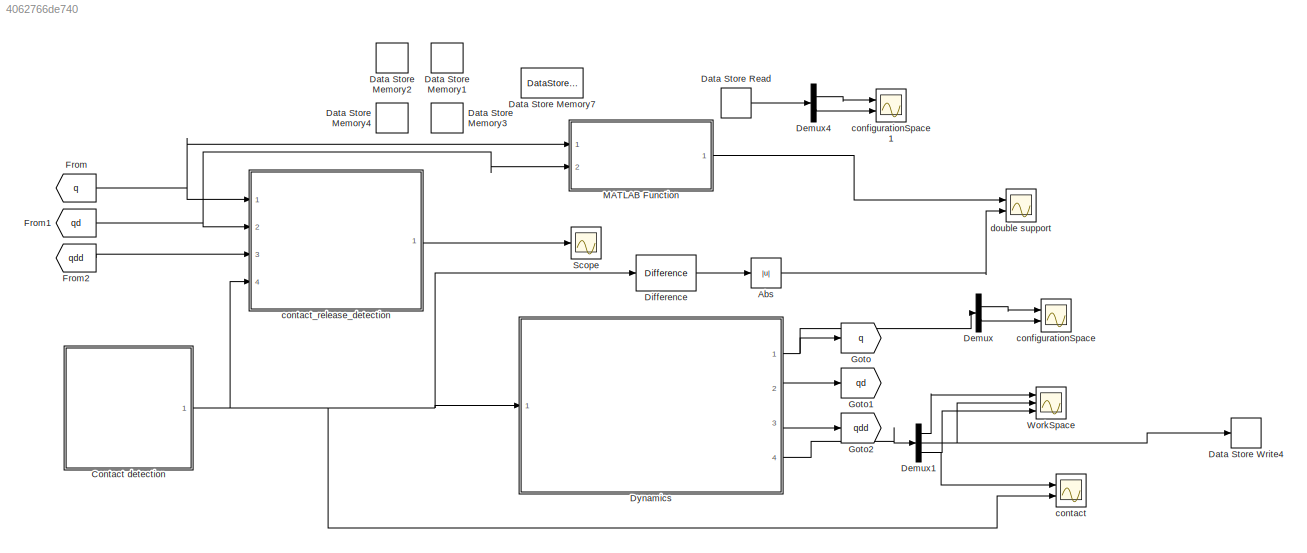
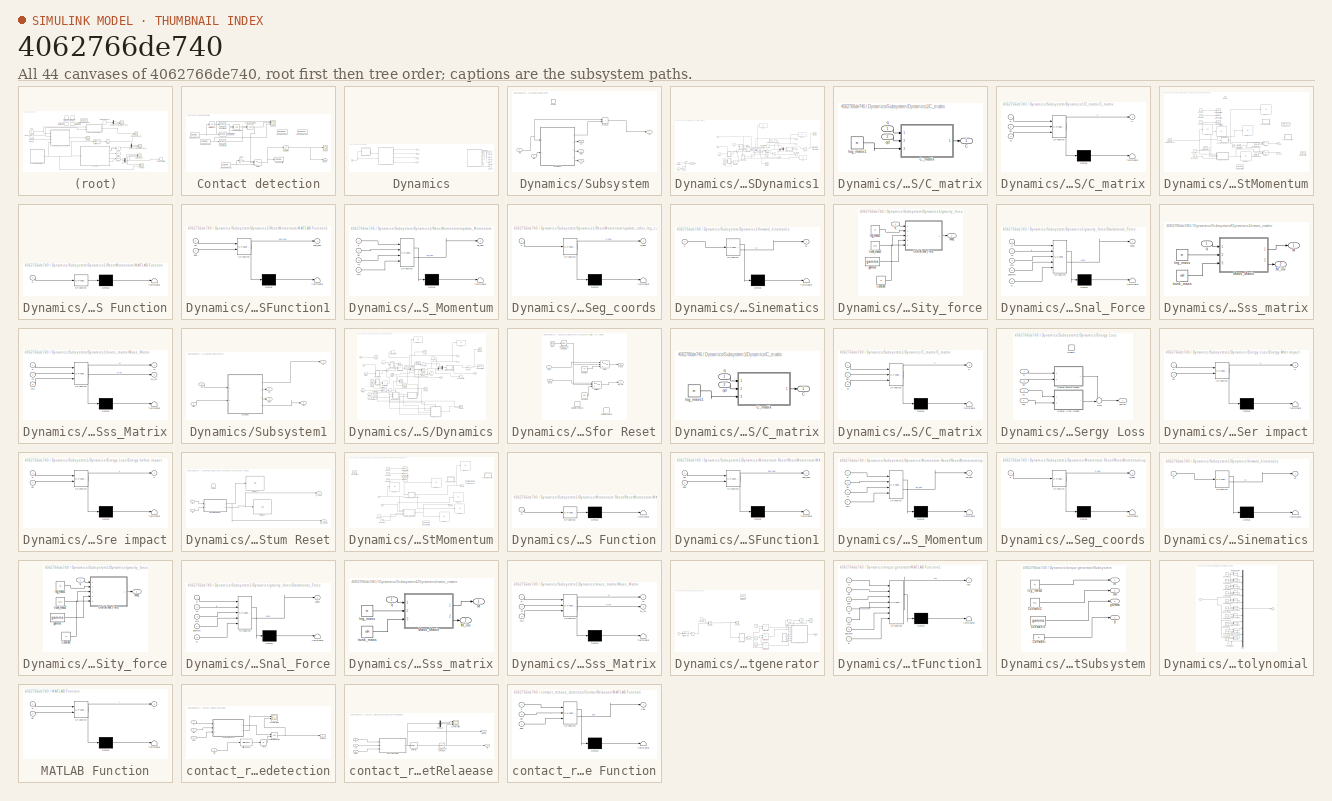
[diagram: thumbnail index - all 44 canvases of the model, root first then tree order]
MODEL slx_4062766de740
KIND model
CONFIG AbsTol = auto
CONFIG EnableMultiTasking = off
CONFIG FixedStep = 1e-4
CONFIG InitFcn = dribbel_init_params;
CONFIG MaxStep = 1e-3
CONFIG MinStep = auto
CONFIG RelTol = 1e-6
CONFIG SampleTimeConstraint = Unconstrained
CONFIG SolverName = FixedStepAuto
CONFIG StartTime = 0.0
CONFIG StopTime = 6
BLOCK [Abs] Abs
  SaturateOnIntegerOverflow = off
BLOCK [SubSystem] Contact detection
  Ports = [0, 1]
  RequestExecContextInheritance = off
BLOCK [Reference] Contact detection/Compare To Constant3  REF=simulink/Logic and Bit
Operations/Compare
To Constant
  Ports = [1, 1]
  SourceBlock = simulink/Logic and Bit\nOperations/Compare\nTo Constant
  SourceProductBaseCode = SL
  SourceType = Compare To Constant
BLOCK [Reference] Contact detection/Compare To Constant5  REF=simulink/Logic and Bit
Operations/Compare
To Constant
  Ports = [1, 1]
  SourceBlock = simulink/Logic and Bit\nOperations/Compare\nTo Constant
  SourceProductBaseCode = SL
  SourceType = Compare To Constant
BLOCK [Reference] Contact detection/Compare To Constant6  REF=simulink/Logic and Bit
Operations/Compare
To Constant
  Ports = [1, 1]
  SourceBlock = simulink/Logic and Bit\nOperations/Compare\nTo Constant
  SourceProductBaseCode = SL
  SourceType = Compare To Constant
BLOCK [DataStoreMemory] Contact detection/Data Store Memory1
  DataStoreName = counter
  ReadBeforeWriteMsg = warning
  ShowAdditionalParam = off
  WriteAfterReadMsg = warning
  WriteAfterWriteMsg = warning
BLOCK [DataStoreMemory] Contact detection/Data Store Memory4
  DataStoreName = contact_sig
  InitialValue = 1
  ReadBeforeWriteMsg = warning
  ShowAdditionalParam = off
  WriteAfterReadMsg = warning
  WriteAfterWriteMsg = warning
BLOCK [DataStoreRead] Contact detection/Data Store Read1
  DataStoreName = leg_height
  IndexOptions = Index vector (dialog)
  Indices = 1
  OutputSizes = 1
  Ports = [0, 1]
BLOCK [DataStoreRead] Contact detection/Data Store Read2
  DataStoreName = contact_sig
  IndexOptions = Index vector (dialog)
  Indices = 1
  OutputSizes = 1
  Ports = [0, 1]
BLOCK [DataStoreRead] Contact detection/Data Store Read5
  DataStoreName = c2y
  IndexOptions = Index vector (dialog)
  Indices = 1
  OutputSizes = 1
  Ports = [0, 1]
BLOCK [DataStoreWrite] Contact detection/Data Store Write
  DataStoreName = contact_sig
  IndexOptions = Index vector (dialog)
  Indices = 1
  OutputSizes = 1
  Ports = [1]
BLOCK [Gain] Contact detection/Gain1
  Gain = -1
BLOCK [Logic] Contact detection/Logical Operator1
  AllPortsSameDT = off
  OutDataTypeStr = boolean
  Ports = [2, 1]
BLOCK [Logic] Contact detection/Logical Operator2
  AllPortsSameDT = off
  OutDataTypeStr = boolean
  Ports = [2, 1]
BLOCK [Saturate] Contact detection/Saturation
  LowerLimit = 0
  UpperLimit = 1
  ZeroCross = off
BLOCK [Scope] Contact detection/Scope
  Floating = off
  NumInputPorts = 1
  Ports = [1]
  ScopeSpecificationString = Simulink.scopes.TimeScopeBlockCfg('CurrentConfiguration', extmgr.ConfigurationSet(extmgr.Configuration('Core','General UI',true,'FigureColor',[1 1 1]),extmgr.Configuration('Core','Source UI',true),extmgr.Configuration('Sources','WiredSimulink',true,'DataLoggingVariableName','ScopeData6'),extmgr.Configuration('Visuals','Time Domain',true,'SerializedDisplays',{struct('MinYLimReal','-0.125','MaxYLimR...<+2292ch>
BLOCK [Scope] Contact detection/Scope6
  Floating = off
  NumInputPorts = 3
  Ports = [3]
  ScopeSpecificationString = Simulink.scopes.TimeScopeBlockCfg('CurrentConfiguration', extmgr.ConfigurationSet(extmgr.Configuration('Core','General UI',true,'FigureColor',[1 1 1]),extmgr.Configuration('Core','Source UI',true),extmgr.Configuration('Sources','WiredSimulink',true,'DataLoggingVariableName','ScopeData1'),extmgr.Configuration('Visuals','Time Domain',true,'SerializedDisplays',{struct('MinYLimReal','-1.53519','MaxYLi...<+3833ch>
BLOCK [Switch] Contact detection/Switch
  Criteria = u2 ~= 0
  InputSameDT = off
  SaturateOnIntegerOverflow = off
  Threshold = 0.5
  ZeroCross = off
BLOCK [UnitDelay] Contact detection/Unit Delay1
  HasFrameUpgradeWarning = on
  SampleTime = -1
BLOCK [Outport] Contact detection/signal
BLOCK [DataStoreMemory] Data Store Memory1
  DataStoreName = q
  InitialValue = q0
  ReadBeforeWriteMsg = warning
  ShowAdditionalParam = off
  WriteAfterReadMsg = warning
  WriteAfterWriteMsg = warning
BLOCK [DataStoreMemory] Data Store Memory2
  DataStoreName = c2y
  InitialValue = c2(1,1)
  ReadBeforeWriteMsg = warning
  ShowAdditionalParam = off
  WriteAfterReadMsg = warning
  WriteAfterWriteMsg = warning
BLOCK [DataStoreMemory] Data Store Memory3
  DataStoreName = qd
  InitialValue = qd0
  ReadBeforeWriteMsg = warning
  ShowAdditionalParam = off
  WriteAfterReadMsg = warning
  WriteAfterWriteMsg = warning
BLOCK [DataStoreMemory] Data Store Memory4
  DataStoreName = qdd
  InitialValue = qd0
  ReadBeforeWriteMsg = warning
  ShowAdditionalParam = off
  WriteAfterReadMsg = warning
  WriteAfterWriteMsg = warning
BLOCK [DataStoreMemory] Data Store Memory7
  DataStoreName = leg_height
  ReadBeforeWriteMsg = warning
  ShowAdditionalParam = off
  WriteAfterReadMsg = warning
  WriteAfterWriteMsg = warning
BLOCK [DataStoreRead] Data Store Read
  DataStoreName = q
  IndexOptions = Index vector (dialog)
  Indices = 1
  OutputSizes = 1
  Ports = [0, 1]
BLOCK [DataStoreWrite] Data Store Write4
  DataStoreName = c2y
  IndexOptions = Index vector (dialog)
  Indices = 1
  OutputSizes = 1
  Ports = [1]
BLOCK [Demux] Demux
  Outputs = 2
  Ports = [1, 2]
BLOCK [Demux] Demux1
  Outputs = 3
  Ports = [1, 3]
BLOCK [Demux] Demux4
  Outputs = 2
  Ports = [1, 2]
BLOCK [Reference] Difference  REF=simulink/Discrete/Difference
  Ports = [1, 1]
  SourceBlock = simulink/Discrete/Difference
  SourceProductBaseCode = SL
  SourceType = Difference
BLOCK [SubSystem] Dynamics
  Ports = [1, 4]
  RequestExecContextInheritance = off
BLOCK [Product] Dynamics/Product4
  Commented = on
  Ports = [2, 1]
BLOCK [Product] Dynamics/Product5
  Commented = on
  Ports = [2, 1]
BLOCK [Product] Dynamics/Product6
  Commented = on
  Ports = [2, 1]
BLOCK [Product] Dynamics/Product7
  Commented = on
  Ports = [2, 1]
BLOCK [SubSystem] Dynamics/Subsystem
  Commented = on
  Ports = [2, 4, 1]
  RequestExecContextInheritance = off
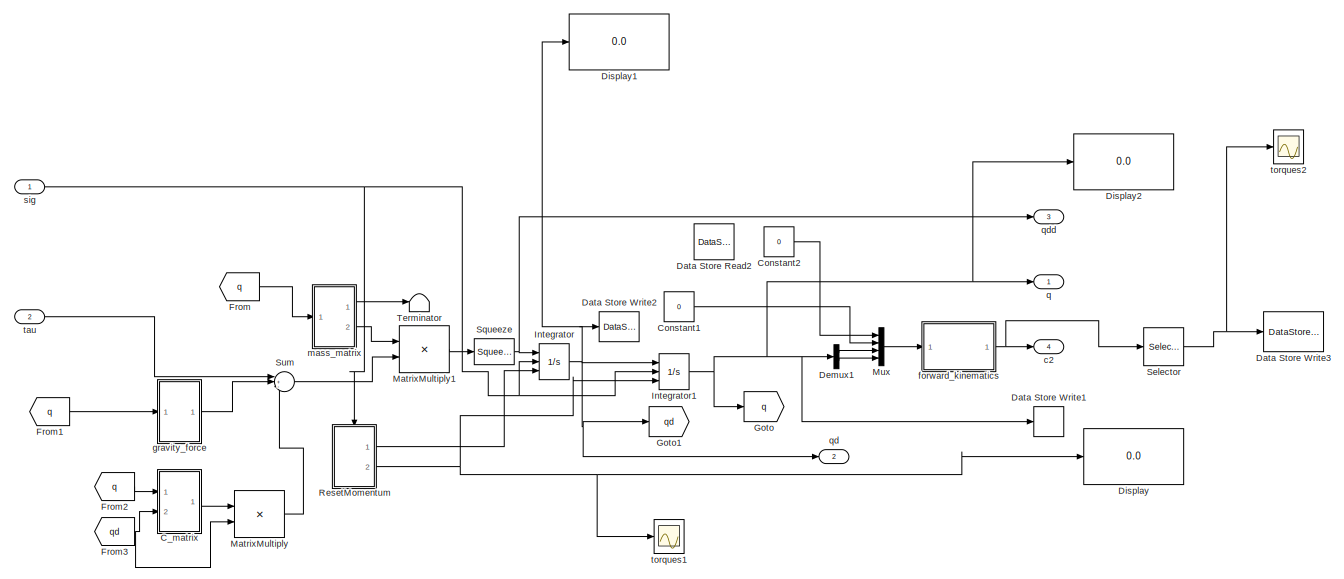
[diagram: Dynamics/Subsystem/Dynamics1 - part 1/2, center side, full height]
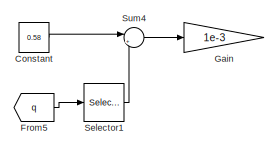
[diagram: Dynamics/Subsystem/Dynamics1 - part 2/2, bottom left region]
BLOCK [SubSystem] Dynamics/Subsystem/Dynamics1
  Ports = [2, 4]
  RequestExecContextInheritance = off
BLOCK [SubSystem] Dynamics/Subsystem/Dynamics1/C_matrix
  Ports = [2, 1]
  RequestExecContextInheritance = off
BLOCK [Outport] Dynamics/Subsystem/Dynamics1/C_matrix/C
BLOCK [SubSystem] Dynamics/Subsystem/Dynamics1/C_matrix/C_matrix
  ErrorFcn = Stateflow.Translate.translate
  PermitHierarchicalResolution = ExplicitOnly
  Ports = [3, 1]
  RequestExecContextInheritance = off
  SFBlockType = MATLAB Function
  TreatAsAtomicUnit = on
BLOCK [Demux] Dynamics/Subsystem/Dynamics1/C_matrix/C_matrix/ Demux 
  Outputs = 1
  Ports = [1, 1]
BLOCK [S-Function] Dynamics/Subsystem/Dynamics1/C_matrix/C_matrix/ SFunction 
  EnableBusSupport = on
  FunctionName = sf_sfun
  PortCounts = [3 2]
  Ports = [3, 2]
  SFcnIsStateOwnerBlock = off
  SFunctionDeploymentMode = off
  Tag = Stateflow S-Function 8
BLOCK [Terminator] Dynamics/Subsystem/Dynamics1/C_matrix/C_matrix/ Terminator 
BLOCK [Outport] Dynamics/Subsystem/Dynamics1/C_matrix/C_matrix/C
BLOCK [Inport] Dynamics/Subsystem/Dynamics1/C_matrix/C_matrix/m
  Port = 3
BLOCK [Inport] Dynamics/Subsystem/Dynamics1/C_matrix/C_matrix/q
BLOCK [Inport] Dynamics/Subsystem/Dynamics1/C_matrix/C_matrix/qd
  Port = 2
BLOCK [Constant] Dynamics/Subsystem/Dynamics1/C_matrix/leg_mass1
  Value = m
BLOCK [Inport] Dynamics/Subsystem/Dynamics1/C_matrix/q
BLOCK [Inport] Dynamics/Subsystem/Dynamics1/C_matrix/qd
  Port = 2
BLOCK [Constant] Dynamics/Subsystem/Dynamics1/Constant
  Commented = on
  Value = 0.58
BLOCK [Constant] Dynamics/Subsystem/Dynamics1/Constant1
  Value = 0
BLOCK [Constant] Dynamics/Subsystem/Dynamics1/Constant2
  Value = 0
BLOCK [DataStoreRead] Dynamics/Subsystem/Dynamics1/Data Store Read2
  Commented = on
  DataStoreName = c2y
  IndexOptions = Index vector (dialog)
  Indices = 1
  OutputSizes = 1
  Ports = [0, 1]
BLOCK [DataStoreWrite] Dynamics/Subsystem/Dynamics1/Data Store Write1
  DataStoreName = q
  IndexOptions = Index vector (dialog)
  Indices = 1
  OutputSizes = 1
  Ports = [1]
BLOCK [DataStoreWrite] Dynamics/Subsystem/Dynamics1/Data Store Write2
  DataStoreName = qd
  IndexOptions = Index vector (dialog)
  Indices = 1
  OutputSizes = 1
  Ports = [1]
BLOCK [DataStoreWrite] Dynamics/Subsystem/Dynamics1/Data Store Write3
  DataStoreName = leg_height
  IndexOptions = Index vector (dialog)
  Indices = 1
  OutputSizes = 1
  Ports = [1]
BLOCK [Demux] Dynamics/Subsystem/Dynamics1/Demux1
  Outputs = 2
  Ports = [1, 2]
BLOCK [Display] Dynamics/Subsystem/Dynamics1/Display
  Decimation = 1
  Ports = [1]
BLOCK [Display] Dynamics/Subsystem/Dynamics1/Display1
  Decimation = 1
  Ports = [1]
BLOCK [Display] Dynamics/Subsystem/Dynamics1/Display2
  Decimation = 1
  Ports = [1]
BLOCK [From] Dynamics/Subsystem/Dynamics1/From
  GotoTag = q
BLOCK [From] Dynamics/Subsystem/Dynamics1/From1
  GotoTag = q
BLOCK [From] Dynamics/Subsystem/Dynamics1/From2
  GotoTag = q
BLOCK [From] Dynamics/Subsystem/Dynamics1/From3
  GotoTag = qd
BLOCK [From] Dynamics/Subsystem/Dynamics1/From5
  Commented = on
  GotoTag = q
BLOCK [Gain] Dynamics/Subsystem/Dynamics1/Gain
  Commented = on
  Gain = 1e-3
BLOCK [Goto] Dynamics/Subsystem/Dynamics1/Goto
  GotoTag = q
BLOCK [Goto] Dynamics/Subsystem/Dynamics1/Goto1
  GotoTag = qd
BLOCK [Integrator] Dynamics/Subsystem/Dynamics1/Integrator
  ExternalReset = rising
  InitialCondition = qd0
  InitialConditionSource = external
  Ports = [3, 1]
BLOCK [Integrator] Dynamics/Subsystem/Dynamics1/Integrator1
  ExternalReset = rising
  InitialCondition = q0
  InitialConditionSource = external
  Ports = [3, 1]
BLOCK [Product] Dynamics/Subsystem/Dynamics1/MatrixMultiply
  Multiplication = Matrix(*)
  Ports = [2, 1]
BLOCK [Product] Dynamics/Subsystem/Dynamics1/MatrixMultiply1
  Multiplication = Matrix(*)
  Ports = [2, 1]
BLOCK [Mux] Dynamics/Subsystem/Dynamics1/Mux
  DisplayOption = bar
  Ports = [4, 1]
BLOCK [SubSystem] Dynamics/Subsystem/Dynamics1/ResetMomentum
  Ports = [0, 2, 1]
  RequestExecContextInheritance = off
BLOCK [Clock] Dynamics/Subsystem/Dynamics1/ResetMomentum/Clock
BLOCK [Reference] Dynamics/Subsystem/Dynamics1/ResetMomentum/Compare To Constant  REF=simulink/Logic and Bit
Operations/Compare
To Constant
  Ports = [1, 1]
  SourceBlock = simulink/Logic and Bit\nOperations/Compare\nTo Constant
  SourceProductBaseCode = SL
  SourceType = Compare To Constant
BLOCK [Constant] Dynamics/Subsystem/Dynamics1/ResetMomentum/Constant
  Commented = on
  Value = q0
BLOCK [Constant] Dynamics/Subsystem/Dynamics1/ResetMomentum/Constant1
  Commented = on
  Value = qd0
BLOCK [Constant] Dynamics/Subsystem/Dynamics1/ResetMomentum/Constant2
  Commented = on
  Value = qdd0
BLOCK [DataStoreRead] Dynamics/Subsystem/Dynamics1/ResetMomentum/Data Store Read1
  DataStoreName = qd
  IndexOptions = Index vector (dialog)
  Indices = 1
  OutputSizes = 1
  Ports = [0, 1]
BLOCK [DataStoreRead] Dynamics/Subsystem/Dynamics1/ResetMomentum/Data Store Read2
  DataStoreName = q
  IndexOptions = Index vector (dialog)
  Indices = 1
  OutputSizes = 1
  Ports = [0, 1]
BLOCK [DataStoreRead] Dynamics/Subsystem/Dynamics1/ResetMomentum/Data Store Read3
  DataStoreName = q
  IndexOptions = Index vector (dialog)
  Indices = 1
  OutputSizes = 1
  Ports = [0, 1]
BLOCK [DataStoreRead] Dynamics/Subsystem/Dynamics1/ResetMomentum/Data Store Read4
  DataStoreName = qd
  IndexOptions = Index vector (dialog)
  Indices = 1
  OutputSizes = 1
  Ports = [0, 1]
BLOCK [DataStoreWrite] Dynamics/Subsystem/Dynamics1/ResetMomentum/Data Store Write1
  Commented = on
  DataStoreName = q
  IndexOptions = Index vector (dialog)
  Indices = 1
  OutputSizes = 1
  Ports = [1]
BLOCK [DataStoreWrite] Dynamics/Subsystem/Dynamics1/ResetMomentum/Data Store Write2
  Commented = on
  DataStoreName = q
  IndexOptions = Index vector (dialog)
  Indices = 1
  OutputSizes = 1
  Ports = [1]
BLOCK [DataStoreWrite] Dynamics/Subsystem/Dynamics1/ResetMomentum/Data Store Write3
  Commented = on
  DataStoreName = qd
  IndexOptions = Index vector (dialog)
  Indices = 1
  OutputSizes = 1
  Ports = [1]
BLOCK [DataStoreWrite] Dynamics/Subsystem/Dynamics1/ResetMomentum/Data Store Write4
  Commented = on
  DataStoreName = qd
  IndexOptions = Index vector (dialog)
  Indices = 1
  OutputSizes = 1
  Ports = [1]
BLOCK [DataStoreWrite] Dynamics/Subsystem/Dynamics1/ResetMomentum/Data Store Write5
  Commented = on
  DataStoreName = qdd
  IndexOptions = Index vector (dialog)
  Indices = 1
  OutputSizes = 1
  Ports = [1]
BLOCK [Display] Dynamics/Subsystem/Dynamics1/ResetMomentum/Display
  Decimation = 1
  Ports = [1]
BLOCK [Display] Dynamics/Subsystem/Dynamics1/ResetMomentum/Display1
  Decimation = 1
  Ports = [1]
BLOCK [Display] Dynamics/Subsystem/Dynamics1/ResetMomentum/Display2
  Commented = on
  Decimation = 1
  Ports = [1]
BLOCK [Display] Dynamics/Subsystem/Dynamics1/ResetMomentum/Display3
  Decimation = 1
  Ports = [1]
BLOCK [Display] Dynamics/Subsystem/Dynamics1/ResetMomentum/Display4
  Decimation = 1
  Ports = [1]
BLOCK [EnablePort] Dynamics/Subsystem/Dynamics1/ResetMomentum/Enable
  Ports = []
  StatesWhenEnabling = reset
  ZeroCross = off
BLOCK [SubSystem] Dynamics/Subsystem/Dynamics1/ResetMomentum/MATLAB Function
  Commented = on
  ErrorFcn = Stateflow.Translate.translate
  PermitHierarchicalResolution = ExplicitOnly
  Ports = [1]
  RequestExecContextInheritance = off
  SFBlockType = MATLAB Function
  TreatAsAtomicUnit = on
BLOCK [Demux] Dynamics/Subsystem/Dynamics1/ResetMomentum/MATLAB Function/ Demux 
  Outputs = 1
  Ports = [1, 1]
BLOCK [S-Function] Dynamics/Subsystem/Dynamics1/ResetMomentum/MATLAB Function/ SFunction 
  EnableBusSupport = on
  FunctionName = sf_sfun
  PortCounts = [1 1]
  Ports = [1, 1]
  SFcnIsStateOwnerBlock = off
  SFunctionDeploymentMode = off
  Tag = Stateflow S-Function 20
BLOCK [Terminator] Dynamics/Subsystem/Dynamics1/ResetMomentum/MATLAB Function/ Terminator 
BLOCK [Inport] Dynamics/Subsystem/Dynamics1/ResetMomentum/MATLAB Function/u
BLOCK [SubSystem] Dynamics/Subsystem/Dynamics1/ResetMomentum/MATLAB Function1
  Commented = on
  ErrorFcn = Stateflow.Translate.translate
  PermitHierarchicalResolution = ExplicitOnly
  Ports = [2, 1]
  RequestExecContextInheritance = off
  SFBlockType = MATLAB Function
  TreatAsAtomicUnit = on
BLOCK [Demux] Dynamics/Subsystem/Dynamics1/ResetMomentum/MATLAB Function1/ Demux 
  Outputs = 1
  Ports = [1, 1]
BLOCK [S-Function] Dynamics/Subsystem/Dynamics1/ResetMomentum/MATLAB Function1/ SFunction 
  EnableBusSupport = on
  FunctionName = sf_sfun
  PortCounts = [2 2]
  Ports = [2, 2]
  SFcnIsStateOwnerBlock = off
  SFunctionDeploymentMode = off
  Tag = Stateflow S-Function 21
BLOCK [Terminator] Dynamics/Subsystem/Dynamics1/ResetMomentum/MATLAB Function1/ Terminator 
BLOCK [Inport] Dynamics/Subsystem/Dynamics1/ResetMomentum/MATLAB Function1/qd
BLOCK [Inport] Dynamics/Subsystem/Dynamics1/ResetMomentum/MATLAB Function1/qdd
  Port = 2
BLOCK [Outport] Dynamics/Subsystem/Dynamics1/ResetMomentum/MATLAB Function1/qdd_new
BLOCK [Switch] Dynamics/Subsystem/Dynamics1/ResetMomentum/Switch
  Criteria = u2 > Threshold
  InputSameDT = off
  SaturateOnIntegerOverflow = off
BLOCK [Switch] Dynamics/Subsystem/Dynamics1/ResetMomentum/Switch1
  Criteria = u2 > Threshold
  InputSameDT = off
  SaturateOnIntegerOverflow = off
BLOCK [ToWorkspace] Dynamics/Subsystem/Dynamics1/ResetMomentum/To Workspace
  Commented = on
  FixptAsFi = on
  MaxDataPoints = inf
  Ports = [1]
  SampleTime = -1
  SaveFormat = Timeseries
  VariableName = q
BLOCK [Constant] Dynamics/Subsystem/Dynamics1/ResetMomentum/leg_mass
  Value = m
BLOCK [Outport] Dynamics/Subsystem/Dynamics1/ResetMomentum/q_new
  Port = 2
BLOCK [Outport] Dynamics/Subsystem/Dynamics1/ResetMomentum/qd_new
BLOCK [Constant] Dynamics/Subsystem/Dynamics1/ResetMomentum/trunk_mass
  Value = mH
BLOCK [SubSystem] Dynamics/Subsystem/Dynamics1/ResetMomentum/update_Momentum
  ErrorFcn = Stateflow.Translate.translate
  PermitHierarchicalResolution = ExplicitOnly
  Ports = [4, 1]
  RequestExecContextInheritance = off
  SFBlockType = MATLAB Function
  TreatAsAtomicUnit = on
BLOCK [Demux] Dynamics/Subsystem/Dynamics1/ResetMomentum/update_Momentum/ Demux 
  Outputs = 1
  Ports = [1, 1]
BLOCK [S-Function] Dynamics/Subsystem/Dynamics1/ResetMomentum/update_Momentum/ SFunction 
  EnableBusSupport = on
  FunctionName = sf_sfun
  PortCounts = [4 2]
  Ports = [4, 2]
  SFcnIsStateOwnerBlock = off
  SFunctionDeploymentMode = off
  Tag = Stateflow S-Function 22
BLOCK [Terminator] Dynamics/Subsystem/Dynamics1/ResetMomentum/update_Momentum/ Terminator 
BLOCK [Inport] Dynamics/Subsystem/Dynamics1/ResetMomentum/update_Momentum/m
  Port = 3
BLOCK [Inport] Dynamics/Subsystem/Dynamics1/ResetMomentum/update_Momentum/mH
  Port = 4
BLOCK [Inport] Dynamics/Subsystem/Dynamics1/ResetMomentum/update_Momentum/q
BLOCK [Inport] Dynamics/Subsystem/Dynamics1/ResetMomentum/update_Momentum/qd
  Port = 2
BLOCK [Outport] Dynamics/Subsystem/Dynamics1/ResetMomentum/update_Momentum/qd_new
BLOCK [SubSystem] Dynamics/Subsystem/Dynamics1/ResetMomentum/update_other_leg_coords
  ErrorFcn = Stateflow.Translate.translate
  PermitHierarchicalResolution = ExplicitOnly
  Ports = [1, 1]
  RequestExecContextInheritance = off
  SFBlockType = MATLAB Function
  TreatAsAtomicUnit = on
BLOCK [Demux] Dynamics/Subsystem/Dynamics1/ResetMomentum/update_other_leg_coords/ Demux 
  Outputs = 1
  Ports = [1, 1]
BLOCK [S-Function] Dynamics/Subsystem/Dynamics1/ResetMomentum/update_other_leg_coords/ SFunction 
  EnableBusSupport = on
  FunctionName = sf_sfun
  PortCounts = [1 2]
  Ports = [1, 2]
  SFcnIsStateOwnerBlock = off
  SFunctionDeploymentMode = off
  Tag = Stateflow S-Function 23
BLOCK [Terminator] Dynamics/Subsystem/Dynamics1/ResetMomentum/update_other_leg_coords/ Terminator 
BLOCK [Inport] Dynamics/Subsystem/Dynamics1/ResetMomentum/update_other_leg_coords/q
BLOCK [Outport] Dynamics/Subsystem/Dynamics1/ResetMomentum/update_other_leg_coords/q_new
BLOCK [Selector] Dynamics/Subsystem/Dynamics1/Selector
  IndexOptions = Index vector (dialog)
  Indices = 3
  InputPortWidth = 3
  OutputSizes = 1
  Ports = [1, 1]
BLOCK [Selector] Dynamics/Subsystem/Dynamics1/Selector1
  Commented = on
  IndexOptions = Index vector (dialog)
  Indices = 2
  InputPortWidth = 2
  OutputSizes = 1
  Ports = [1, 1]
BLOCK [Squeeze] Dynamics/Subsystem/Dynamics1/Squeeze
BLOCK [Sum] Dynamics/Subsystem/Dynamics1/Sum
  Inputs = |+--
  Ports = [3, 1]
BLOCK [Sum] Dynamics/Subsystem/Dynamics1/Sum4
  Commented = on
  Inputs = |+-
  Ports = [2, 1]
BLOCK [Terminator] Dynamics/Subsystem/Dynamics1/Terminator
BLOCK [Outport] Dynamics/Subsystem/Dynamics1/c2
  Port = 4
BLOCK [SubSystem] Dynamics/Subsystem/Dynamics1/forward_kinematics
  ErrorFcn = Stateflow.Translate.translate
  PermitHierarchicalResolution = ExplicitOnly
  Ports = [1, 1]
  RequestExecContextInheritance = off
  SFBlockType = MATLAB Function
  TreatAsAtomicUnit = on
BLOCK [Demux] Dynamics/Subsystem/Dynamics1/forward_kinematics/ Demux 
  Outputs = 1
  Ports = [1, 1]
BLOCK [S-Function] Dynamics/Subsystem/Dynamics1/forward_kinematics/ SFunction 
  EnableBusSupport = on
  FunctionName = sf_sfun
  PortCounts = [1 2]
  Ports = [1, 2]
  SFcnIsStateOwnerBlock = off
  SFunctionDeploymentMode = off
  Tag = Stateflow S-Function 9
BLOCK [Terminator] Dynamics/Subsystem/Dynamics1/forward_kinematics/ Terminator 
BLOCK [Outport] Dynamics/Subsystem/Dynamics1/forward_kinematics/c2
BLOCK [Inport] Dynamics/Subsystem/Dynamics1/forward_kinematics/q
BLOCK [SubSystem] Dynamics/Subsystem/Dynamics1/gravity_force
  Ports = [1, 1]
  RequestExecContextInheritance = off
BLOCK [Constant] Dynamics/Subsystem/Dynamics1/gravity_force/Constant
  Value = g
BLOCK [SubSystem] Dynamics/Subsystem/Dynamics1/gravity_force/Graitational_Force
  ErrorFcn = Stateflow.Translate.translate
  PermitHierarchicalResolution = ExplicitOnly
  Ports = [5, 1]
  RequestExecContextInheritance = off
  SFBlockType = MATLAB Function
  TreatAsAtomicUnit = on
BLOCK [Demux] Dynamics/Subsystem/Dynamics1/gravity_force/Graitational_Force/ Demux 
  Outputs = 1
  Ports = [1, 1]
BLOCK [S-Function] Dynamics/Subsystem/Dynamics1/gravity_force/Graitational_Force/ SFunction 
  EnableBusSupport = on
  FunctionName = sf_sfun
  PortCounts = [5 2]
  Ports = [5, 2]
  SFcnIsStateOwnerBlock = off
  SFunctionDeploymentMode = off
  Tag = Stateflow S-Function 14
BLOCK [Terminator] Dynamics/Subsystem/Dynamics1/gravity_force/Graitational_Force/ Terminator 
BLOCK [Outport] Dynamics/Subsystem/Dynamics1/gravity_force/Graitational_Force/dvdq
BLOCK [Inport] Dynamics/Subsystem/Dynamics1/gravity_force/Graitational_Force/g
  Port = 5
BLOCK [Inport] Dynamics/Subsystem/Dynamics1/gravity_force/Graitational_Force/gamma
  Port = 4
BLOCK [Inport] Dynamics/Subsystem/Dynamics1/gravity_force/Graitational_Force/m
  Port = 2
BLOCK [Inport] Dynamics/Subsystem/Dynamics1/gravity_force/Graitational_Force/mH
  Port = 3
BLOCK [Inport] Dynamics/Subsystem/Dynamics1/gravity_force/Graitational_Force/q
BLOCK [Outport] Dynamics/Subsystem/Dynamics1/gravity_force/dvdq
BLOCK [Constant] Dynamics/Subsystem/Dynamics1/gravity_force/gamma
  Value = gamma
BLOCK [Constant] Dynamics/Subsystem/Dynamics1/gravity_force/leg_mass2
  Value = m
BLOCK [Inport] Dynamics/Subsystem/Dynamics1/gravity_force/q
BLOCK [Constant] Dynamics/Subsystem/Dynamics1/gravity_force/trunk_mass2
  Value = mH
BLOCK [SubSystem] Dynamics/Subsystem/Dynamics1/mass_matrix
  Ports = [1, 2]
  RequestExecContextInheritance = off
BLOCK [Outport] Dynamics/Subsystem/Dynamics1/mass_matrix/M
BLOCK [Outport] Dynamics/Subsystem/Dynamics1/mass_matrix/M_inv
  Port = 2
BLOCK [SubSystem] Dynamics/Subsystem/Dynamics1/mass_matrix/Mass_Matrix
  ErrorFcn = Stateflow.Translate.translate
  PermitHierarchicalResolution = ExplicitOnly
  Ports = [3, 2]
  RequestExecContextInheritance = off
  SFBlockType = MATLAB Function
  TreatAsAtomicUnit = on
BLOCK [Demux] Dynamics/Subsystem/Dynamics1/mass_matrix/Mass_Matrix/ Demux 
  Outputs = 1
  Ports = [1, 1]
BLOCK [S-Function] Dynamics/Subsystem/Dynamics1/mass_matrix/Mass_Matrix/ SFunction 
  EnableBusSupport = on
  FunctionName = sf_sfun
  PortCounts = [3 3]
  Ports = [3, 3]
  SFcnIsStateOwnerBlock = off
  SFunctionDeploymentMode = off
  Tag = Stateflow S-Function 15
BLOCK [Terminator] Dynamics/Subsystem/Dynamics1/mass_matrix/Mass_Matrix/ Terminator 
BLOCK [Outport] Dynamics/Subsystem/Dynamics1/mass_matrix/Mass_Matrix/M
BLOCK [Outport] Dynamics/Subsystem/Dynamics1/mass_matrix/Mass_Matrix/M_inv
  Port = 2
BLOCK [Inport] Dynamics/Subsystem/Dynamics1/mass_matrix/Mass_Matrix/m
  Port = 2
BLOCK [Inport] Dynamics/Subsystem/Dynamics1/mass_matrix/Mass_Matrix/mH
  Port = 3
BLOCK [Inport] Dynamics/Subsystem/Dynamics1/mass_matrix/Mass_Matrix/q
BLOCK [Constant] Dynamics/Subsystem/Dynamics1/mass_matrix/leg_mass
  Value = m
BLOCK [Inport] Dynamics/Subsystem/Dynamics1/mass_matrix/q
BLOCK [Constant] Dynamics/Subsystem/Dynamics1/mass_matrix/trunk_mass
  Value = mH
BLOCK [Outport] Dynamics/Subsystem/Dynamics1/q
BLOCK [Outport] Dynamics/Subsystem/Dynamics1/qd
  Port = 2
BLOCK [Outport] Dynamics/Subsystem/Dynamics1/qdd
  Port = 3
BLOCK [Inport] Dynamics/Subsystem/Dynamics1/sig
BLOCK [Inport] Dynamics/Subsystem/Dynamics1/tau
  Port = 2
BLOCK [Scope] Dynamics/Subsystem/Dynamics1/torques1
  Floating = off
  NumInputPorts = 1
  Ports = [1]
  ScopeSpecificationString = Simulink.scopes.TimeScopeBlockCfg('CurrentConfiguration', extmgr.ConfigurationSet(extmgr.Configuration('Core','General UI',true,'FigureColor',[1 1 1]),extmgr.Configuration('Core','Source UI',true),extmgr.Configuration('Sources','WiredSimulink',true,'DataLoggingVariableName','ScopeData10'),extmgr.Configuration('Visuals','Time Domain',true,'SerializedDisplays',{struct('MinYLimReal','-0.72507','MaxYL...<+1868ch>
BLOCK [Scope] Dynamics/Subsystem/Dynamics1/torques2
  Floating = off
  NumInputPorts = 1
  Ports = [1]
  ScopeSpecificationString = Simulink.scopes.TimeScopeBlockCfg('CurrentConfiguration', extmgr.ConfigurationSet(extmgr.Configuration('Core','General UI',true,'FigureColor',[1 1 1]),extmgr.Configuration('Core','Source UI',true),extmgr.Configuration('Sources','WiredSimulink',true,'DataLoggingVariableName','ScopeData14'),extmgr.Configuration('Visuals','Time Domain',true,'SerializedDisplays',{struct('MinYLimReal','-0.0313','MaxYLi...<+1840ch>
BLOCK [EnablePort] Dynamics/Subsystem/Enable
  Ports = []
BLOCK [Product] Dynamics/Subsystem/Product
  Ports = [2, 1]
BLOCK [Outport] Dynamics/Subsystem/c2
  Port = 4
BLOCK [Outport] Dynamics/Subsystem/q
BLOCK [Outport] Dynamics/Subsystem/qd
  Port = 2
BLOCK [Outport] Dynamics/Subsystem/qdd
  Port = 3
BLOCK [Inport] Dynamics/Subsystem/sig
  Port = 2
BLOCK [Inport] Dynamics/Subsystem/tau
BLOCK [SubSystem] Dynamics/Subsystem1
  Ports = [2, 4]
  RequestExecContextInheritance = off
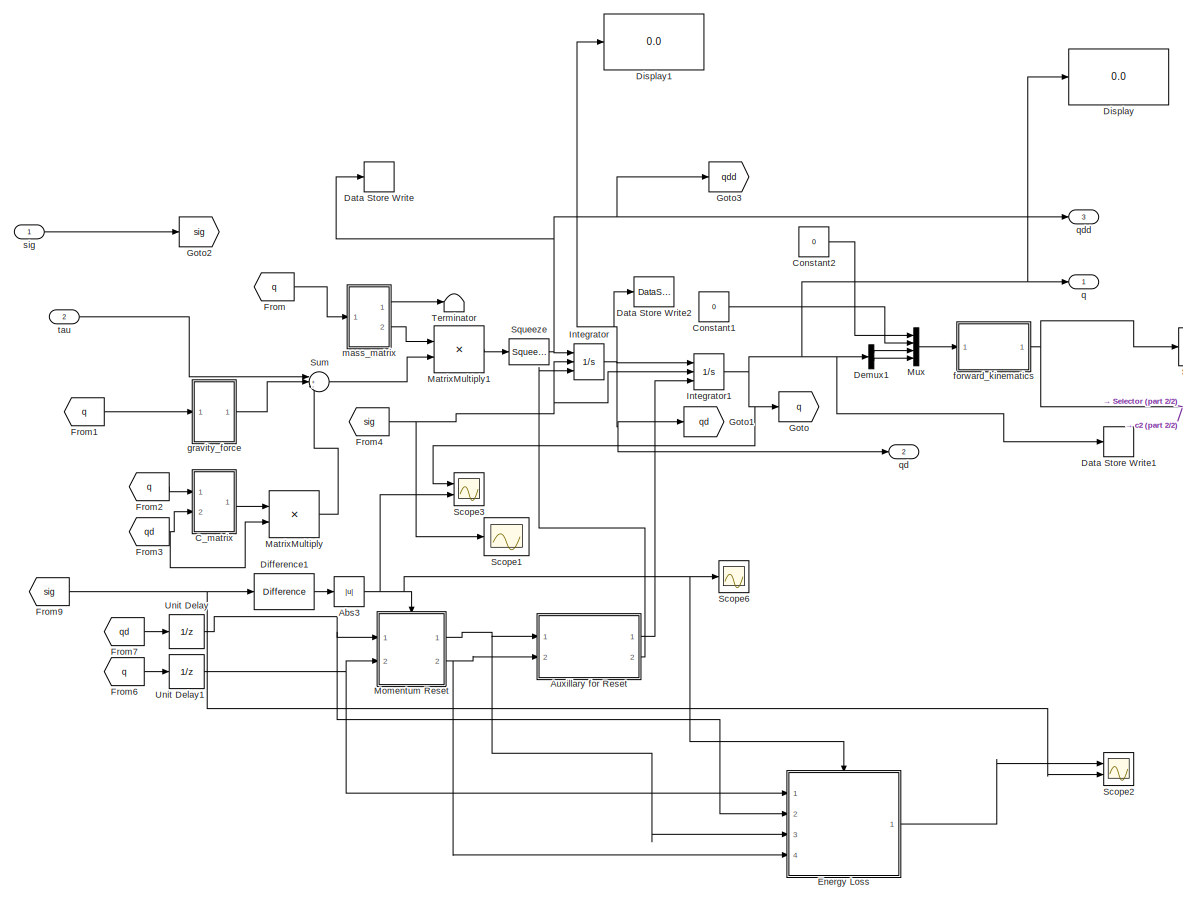
[diagram: Dynamics/Subsystem1/Dynamics - part 1/2, most of the canvas]
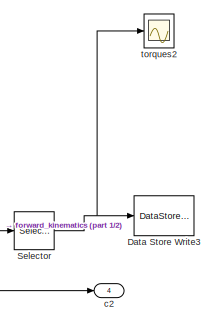
[diagram: Dynamics/Subsystem1/Dynamics - part 2/2, top right region]
BLOCK [SubSystem] Dynamics/Subsystem1/Dynamics
  Ports = [2, 4]
  RequestExecContextInheritance = off
BLOCK [Abs] Dynamics/Subsystem1/Dynamics/Abs3
  SaturateOnIntegerOverflow = off
BLOCK [SubSystem] Dynamics/Subsystem1/Dynamics/Auxillary for Reset
  Ports = [2, 2]
  RequestExecContextInheritance = off
BLOCK [Clock] Dynamics/Subsystem1/Dynamics/Auxillary for Reset/Clock
BLOCK [Reference] Dynamics/Subsystem1/Dynamics/Auxillary for Reset/Compare To Constant  REF=simulink/Logic and Bit
Operations/Compare
To Constant
  Ports = [1, 1]
  SourceBlock = simulink/Logic and Bit\nOperations/Compare\nTo Constant
  SourceProductBaseCode = SL
  SourceType = Compare To Constant
BLOCK [Constant] Dynamics/Subsystem1/Dynamics/Auxillary for Reset/Constant
  Value = q0
BLOCK [Constant] Dynamics/Subsystem1/Dynamics/Auxillary for Reset/Constant1
  Value = qd0
BLOCK [DataStoreRead] Dynamics/Subsystem1/Dynamics/Auxillary for Reset/Data Store Read
  DataStoreName = q
  IndexOptions = Index vector (dialog)
  Indices = 1
  OutputSizes = 1
  Ports = [0, 1]
BLOCK [DataStoreRead] Dynamics/Subsystem1/Dynamics/Auxillary for Reset/Data Store Read2
  DataStoreName = qd
  IndexOptions = Index vector (dialog)
  Indices = 1
  OutputSizes = 1
  Ports = [0, 1]
BLOCK [Switch] Dynamics/Subsystem1/Dynamics/Auxillary for Reset/Switch
  Criteria = u2 > Threshold
  InputSameDT = off
  SaturateOnIntegerOverflow = off
BLOCK [Switch] Dynamics/Subsystem1/Dynamics/Auxillary for Reset/Switch1
  Criteria = u2 > Threshold
  InputSameDT = off
  SaturateOnIntegerOverflow = off
BLOCK [Inport] Dynamics/Subsystem1/Dynamics/Auxillary for Reset/q_in
BLOCK [Outport] Dynamics/Subsystem1/Dynamics/Auxillary for Reset/q_out
BLOCK [Inport] Dynamics/Subsystem1/Dynamics/Auxillary for Reset/qd_in
  Port = 2
BLOCK [Outport] Dynamics/Subsystem1/Dynamics/Auxillary for Reset/qd_out
  Port = 2
BLOCK [SubSystem] Dynamics/Subsystem1/Dynamics/C_matrix
  Ports = [2, 1]
  RequestExecContextInheritance = off
BLOCK [Outport] Dynamics/Subsystem1/Dynamics/C_matrix/C
BLOCK [SubSystem] Dynamics/Subsystem1/Dynamics/C_matrix/C_matrix
  ErrorFcn = Stateflow.Translate.translate
  PermitHierarchicalResolution = ExplicitOnly
  Ports = [3, 1]
  RequestExecContextInheritance = off
  SFBlockType = MATLAB Function
  TreatAsAtomicUnit = on
BLOCK [Demux] Dynamics/Subsystem1/Dynamics/C_matrix/C_matrix/ Demux 
  Outputs = 1
  Ports = [1, 1]
BLOCK [S-Function] Dynamics/Subsystem1/Dynamics/C_matrix/C_matrix/ SFunction 
  EnableBusSupport = on
  FunctionName = sf_sfun
  PortCounts = [3 2]
  Ports = [3, 2]
  SFcnIsStateOwnerBlock = off
  SFunctionDeploymentMode = off
  Tag = Stateflow S-Function 1
BLOCK [Terminator] Dynamics/Subsystem1/Dynamics/C_matrix/C_matrix/ Terminator 
BLOCK [Outport] Dynamics/Subsystem1/Dynamics/C_matrix/C_matrix/C
BLOCK [Inport] Dynamics/Subsystem1/Dynamics/C_matrix/C_matrix/m
  Port = 3
BLOCK [Inport] Dynamics/Subsystem1/Dynamics/C_matrix/C_matrix/q
BLOCK [Inport] Dynamics/Subsystem1/Dynamics/C_matrix/C_matrix/qd
  Port = 2
BLOCK [Constant] Dynamics/Subsystem1/Dynamics/C_matrix/leg_mass1
  Value = m
BLOCK [Inport] Dynamics/Subsystem1/Dynamics/C_matrix/q
BLOCK [Inport] Dynamics/Subsystem1/Dynamics/C_matrix/qd
  Port = 2
BLOCK [Constant] Dynamics/Subsystem1/Dynamics/Constant1
  Value = 0
BLOCK [Constant] Dynamics/Subsystem1/Dynamics/Constant2
  Value = 0
BLOCK [DataStoreWrite] Dynamics/Subsystem1/Dynamics/Data Store Write
  DataStoreName = qdd
  IndexOptions = Index vector (dialog)
  Indices = 1
  OutputSizes = 1
  Ports = [1]
BLOCK [DataStoreWrite] Dynamics/Subsystem1/Dynamics/Data Store Write1
  DataStoreName = q
  IndexOptions = Index vector (dialog)
  Indices = 1
  OutputSizes = 1
  Ports = [1]
BLOCK [DataStoreWrite] Dynamics/Subsystem1/Dynamics/Data Store Write2
  DataStoreName = qd
  IndexOptions = Index vector (dialog)
  Indices = 1
  OutputSizes = 1
  Ports = [1]
BLOCK [DataStoreWrite] Dynamics/Subsystem1/Dynamics/Data Store Write3
  DataStoreName = leg_height
  IndexOptions = Index vector (dialog)
  Indices = 1
  OutputSizes = 1
  Ports = [1]
BLOCK [Demux] Dynamics/Subsystem1/Dynamics/Demux1
  Outputs = 2
  Ports = [1, 2]
BLOCK [Reference] Dynamics/Subsystem1/Dynamics/Difference1  REF=simulink/Discrete/Difference
  Ports = [1, 1]
  SourceBlock = simulink/Discrete/Difference
  SourceProductBaseCode = SL
  SourceType = Difference
BLOCK [Display] Dynamics/Subsystem1/Dynamics/Display
  Decimation = 1
  Ports = [1]
BLOCK [Display] Dynamics/Subsystem1/Dynamics/Display1
  Decimation = 1
  Ports = [1]
BLOCK [SubSystem] Dynamics/Subsystem1/Dynamics/Energy Loss
  Ports = [4, 1, 1]
  RequestExecContextInheritance = off
  TreatAsAtomicUnit = on
BLOCK [EnablePort] Dynamics/Subsystem1/Dynamics/Energy Loss/Enable
  Ports = []
BLOCK [SubSystem] Dynamics/Subsystem1/Dynamics/Energy Loss/Energy After impact
  ErrorFcn = Stateflow.Translate.translate
  PermitHierarchicalResolution = ExplicitOnly
  Ports = [2, 1]
  RequestExecContextInheritance = off
  SFBlockType = MATLAB Function
  TreatAsAtomicUnit = on
BLOCK [Demux] Dynamics/Subsystem1/Dynamics/Energy Loss/Energy After impact/ Demux 
  Outputs = 1
  Ports = [1, 1]
BLOCK [S-Function] Dynamics/Subsystem1/Dynamics/Energy Loss/Energy After impact/ SFunction 
  EnableBusSupport = on
  FunctionName = sf_sfun
  PortCounts = [2 2]
  Ports = [2, 2]
  SFcnIsStateOwnerBlock = off
  SFunctionDeploymentMode = off
  Tag = Stateflow S-Function 27
BLOCK [Terminator] Dynamics/Subsystem1/Dynamics/Energy Loss/Energy After impact/ Terminator 
BLOCK [Outport] Dynamics/Subsystem1/Dynamics/Energy Loss/Energy After impact/K
BLOCK [Inport] Dynamics/Subsystem1/Dynamics/Energy Loss/Energy After impact/q
BLOCK [Inport] Dynamics/Subsystem1/Dynamics/Energy Loss/Energy After impact/qd
  Port = 2
BLOCK [SubSystem] Dynamics/Subsystem1/Dynamics/Energy Loss/Energy before impact
  ErrorFcn = Stateflow.Translate.translate
  PermitHierarchicalResolution = ExplicitOnly
  Ports = [2, 1]
  RequestExecContextInheritance = off
  SFBlockType = MATLAB Function
  TreatAsAtomicUnit = on
BLOCK [Demux] Dynamics/Subsystem1/Dynamics/Energy Loss/Energy before impact/ Demux 
  Outputs = 1
  Ports = [1, 1]
BLOCK [S-Function] Dynamics/Subsystem1/Dynamics/Energy Loss/Energy before impact/ SFunction 
  EnableBusSupport = on
  FunctionName = sf_sfun
  PortCounts = [2 2]
  Ports = [2, 2]
  SFcnIsStateOwnerBlock = off
  SFunctionDeploymentMode = off
  Tag = Stateflow S-Function 26
BLOCK [Terminator] Dynamics/Subsystem1/Dynamics/Energy Loss/Energy before impact/ Terminator 
BLOCK [Outport] Dynamics/Subsystem1/Dynamics/Energy Loss/Energy before impact/K
BLOCK [Inport] Dynamics/Subsystem1/Dynamics/Energy Loss/Energy before impact/q
BLOCK [Inport] Dynamics/Subsystem1/Dynamics/Energy Loss/Energy before impact/qd
  Port = 2
BLOCK [Sum] Dynamics/Subsystem1/Dynamics/Energy Loss/Sum
  Inputs = -+|
  Ports = [2, 1]
BLOCK [Outport] Dynamics/Subsystem1/Dynamics/Energy Loss/deltaU
BLOCK [Inport] Dynamics/Subsystem1/Dynamics/Energy Loss/q
BLOCK [Inport] Dynamics/Subsystem1/Dynamics/Energy Loss/q1
  Port = 3
BLOCK [Inport] Dynamics/Subsystem1/Dynamics/Energy Loss/qd
  Port = 2
BLOCK [Inport] Dynamics/Subsystem1/Dynamics/Energy Loss/qd1
  Port = 4
BLOCK [From] Dynamics/Subsystem1/Dynamics/From
  GotoTag = q
BLOCK [From] Dynamics/Subsystem1/Dynamics/From1
  GotoTag = q
BLOCK [From] Dynamics/Subsystem1/Dynamics/From2
  GotoTag = q
BLOCK [From] Dynamics/Subsystem1/Dynamics/From3
  GotoTag = qd
BLOCK [From] Dynamics/Subsystem1/Dynamics/From4
  GotoTag = sig
BLOCK [From] Dynamics/Subsystem1/Dynamics/From6
  GotoTag = q
BLOCK [From] Dynamics/Subsystem1/Dynamics/From7
  GotoTag = qd
BLOCK [From] Dynamics/Subsystem1/Dynamics/From9
  GotoTag = sig
BLOCK [Goto] Dynamics/Subsystem1/Dynamics/Goto
  GotoTag = q
BLOCK [Goto] Dynamics/Subsystem1/Dynamics/Goto1
  GotoTag = qd
BLOCK [Goto] Dynamics/Subsystem1/Dynamics/Goto2
  GotoTag = sig
BLOCK [Goto] Dynamics/Subsystem1/Dynamics/Goto3
  GotoTag = qdd
BLOCK [Integrator] Dynamics/Subsystem1/Dynamics/Integrator
  ExternalReset = either
  InitialCondition = qd0
  InitialConditionSource = external
  Ports = [3, 1]
  ZeroCross = off
BLOCK [Integrator] Dynamics/Subsystem1/Dynamics/Integrator1
  ExternalReset = either
  InitialCondition = q0
  InitialConditionSource = external
  Ports = [3, 1]
BLOCK [Product] Dynamics/Subsystem1/Dynamics/MatrixMultiply
  Multiplication = Matrix(*)
  Ports = [2, 1]
BLOCK [Product] Dynamics/Subsystem1/Dynamics/MatrixMultiply1
  Multiplication = Matrix(*)
  Ports = [2, 1]
BLOCK [SubSystem] Dynamics/Subsystem1/Dynamics/Momentum Reset
  Ports = [2, 2, 0, 1]
  RequestExecContextInheritance = off
BLOCK [Display] Dynamics/Subsystem1/Dynamics/Momentum Reset/Display2
  Decimation = 1
  Ports = [1]
BLOCK [Display] Dynamics/Subsystem1/Dynamics/Momentum Reset/Display3
  Decimation = 1
  Ports = [1]
BLOCK [SubSystem] Dynamics/Subsystem1/Dynamics/Momentum Reset/ResetMomentum
  Ports = [2, 2]
  RequestExecContextInheritance = off
BLOCK [Constant] Dynamics/Subsystem1/Dynamics/Momentum Reset/ResetMomentum/Constant
  Commented = on
  Value = q0
BLOCK [Constant] Dynamics/Subsystem1/Dynamics/Momentum Reset/ResetMomentum/Constant1
  Commented = on
  Value = qd0
BLOCK [Constant] Dynamics/Subsystem1/Dynamics/Momentum Reset/ResetMomentum/Constant2
  Commented = on
  Value = qdd0
BLOCK [DataStoreWrite] Dynamics/Subsystem1/Dynamics/Momentum Reset/ResetMomentum/Data Store Write1
  Commented = on
  DataStoreName = q
  IndexOptions = Index vector (dialog)
  Indices = 1
  OutputSizes = 1
  Ports = [1]
BLOCK [DataStoreWrite] Dynamics/Subsystem1/Dynamics/Momentum Reset/ResetMomentum/Data Store Write2
  Commented = on
  DataStoreName = q
  IndexOptions = Index vector (dialog)
  Indices = 1
  OutputSizes = 1
  Ports = [1]
BLOCK [DataStoreWrite] Dynamics/Subsystem1/Dynamics/Momentum Reset/ResetMomentum/Data Store Write3
  Commented = on
  DataStoreName = qd
  IndexOptions = Index vector (dialog)
  Indices = 1
  OutputSizes = 1
  Ports = [1]
BLOCK [DataStoreWrite] Dynamics/Subsystem1/Dynamics/Momentum Reset/ResetMomentum/Data Store Write4
  Commented = on
  DataStoreName = qd
  IndexOptions = Index vector (dialog)
  Indices = 1
  OutputSizes = 1
  Ports = [1]
BLOCK [DataStoreWrite] Dynamics/Subsystem1/Dynamics/Momentum Reset/ResetMomentum/Data Store Write5
  Commented = on
  DataStoreName = qdd
  IndexOptions = Index vector (dialog)
  Indices = 1
  OutputSizes = 1
  Ports = [1]
BLOCK [Display] Dynamics/Subsystem1/Dynamics/Momentum Reset/ResetMomentum/Display
  Decimation = 1
  Ports = [1]
BLOCK [Display] Dynamics/Subsystem1/Dynamics/Momentum Reset/ResetMomentum/Display1
  Decimation = 1
  Ports = [1]
BLOCK [Display] Dynamics/Subsystem1/Dynamics/Momentum Reset/ResetMomentum/Display2
  Commented = on
  Decimation = 1
  Ports = [1]
BLOCK [Display] Dynamics/Subsystem1/Dynamics/Momentum Reset/ResetMomentum/Display3
  Decimation = 1
  Ports = [1]
BLOCK [Display] Dynamics/Subsystem1/Dynamics/Momentum Reset/ResetMomentum/Display4
  Decimation = 1
  Ports = [1]
BLOCK [Display] Dynamics/Subsystem1/Dynamics/Momentum Reset/ResetMomentum/Display5
  Decimation = 1
  Ports = [1]
BLOCK [SubSystem] Dynamics/Subsystem1/Dynamics/Momentum Reset/ResetMomentum/MATLAB Function
  Commented = on
  ErrorFcn = Stateflow.Translate.translate
  PermitHierarchicalResolution = ExplicitOnly
  Ports = [1]
  RequestExecContextInheritance = off
  SFBlockType = MATLAB Function
  TreatAsAtomicUnit = on
BLOCK [Demux] Dynamics/Subsystem1/Dynamics/Momentum Reset/ResetMomentum/MATLAB Function/ Demux 
  Outputs = 1
  Ports = [1, 1]
BLOCK [S-Function] Dynamics/Subsystem1/Dynamics/Momentum Reset/ResetMomentum/MATLAB Function/ SFunction 
  EnableBusSupport = on
  FunctionName = sf_sfun
  PortCounts = [1 1]
  Ports = [1, 1]
  SFcnIsStateOwnerBlock = off
  SFunctionDeploymentMode = off
  Tag = Stateflow S-Function 16
BLOCK [Terminator] Dynamics/Subsystem1/Dynamics/Momentum Reset/ResetMomentum/MATLAB Function/ Terminator 
BLOCK [Inport] Dynamics/Subsystem1/Dynamics/Momentum Reset/ResetMomentum/MATLAB Function/u
BLOCK [SubSystem] Dynamics/Subsystem1/Dynamics/Momentum Reset/ResetMomentum/MATLAB Function1
  Commented = on
  ErrorFcn = Stateflow.Translate.translate
  PermitHierarchicalResolution = ExplicitOnly
  Ports = [2, 1]
  RequestExecContextInheritance = off
  SFBlockType = MATLAB Function
  TreatAsAtomicUnit = on
BLOCK [Demux] Dynamics/Subsystem1/Dynamics/Momentum Reset/ResetMomentum/MATLAB Function1/ Demux 
  Outputs = 1
  Ports = [1, 1]
BLOCK [S-Function] Dynamics/Subsystem1/Dynamics/Momentum Reset/ResetMomentum/MATLAB Function1/ SFunction 
  EnableBusSupport = on
  FunctionName = sf_sfun
  PortCounts = [2 2]
  Ports = [2, 2]
  SFcnIsStateOwnerBlock = off
  SFunctionDeploymentMode = off
  Tag = Stateflow S-Function 17
BLOCK [Terminator] Dynamics/Subsystem1/Dynamics/Momentum Reset/ResetMomentum/MATLAB Function1/ Terminator 
BLOCK [Inport] Dynamics/Subsystem1/Dynamics/Momentum Reset/ResetMomentum/MATLAB Function1/qd
BLOCK [Inport] Dynamics/Subsystem1/Dynamics/Momentum Reset/ResetMomentum/MATLAB Function1/qdd
  Port = 2
BLOCK [Outport] Dynamics/Subsystem1/Dynamics/Momentum Reset/ResetMomentum/MATLAB Function1/qdd_new
BLOCK [ToWorkspace] Dynamics/Subsystem1/Dynamics/Momentum Reset/ResetMomentum/To Workspace
  Commented = on
  FixptAsFi = on
  MaxDataPoints = inf
  Ports = [1]
  SampleTime = -1
  SaveFormat = Timeseries
  VariableName = q
BLOCK [Constant] Dynamics/Subsystem1/Dynamics/Momentum Reset/ResetMomentum/leg_mass
  Value = m
BLOCK [Inport] Dynamics/Subsystem1/Dynamics/Momentum Reset/ResetMomentum/q
  Port = 2
BLOCK [Outport] Dynamics/Subsystem1/Dynamics/Momentum Reset/ResetMomentum/q_new
  Port = 2
BLOCK [Inport] Dynamics/Subsystem1/Dynamics/Momentum Reset/ResetMomentum/qd
BLOCK [Outport] Dynamics/Subsystem1/Dynamics/Momentum Reset/ResetMomentum/qd_new
BLOCK [Constant] Dynamics/Subsystem1/Dynamics/Momentum Reset/ResetMomentum/trunk_mass
  Value = mH
BLOCK [SubSystem] Dynamics/Subsystem1/Dynamics/Momentum Reset/ResetMomentum/update_Momentum
  ErrorFcn = Stateflow.Translate.translate
  PermitHierarchicalResolution = ExplicitOnly
  Ports = [4, 1]
  RequestExecContextInheritance = off
  SFBlockType = MATLAB Function
  TreatAsAtomicUnit = on
BLOCK [Demux] Dynamics/Subsystem1/Dynamics/Momentum Reset/ResetMomentum/update_Momentum/ Demux 
  Outputs = 1
  Ports = [1, 1]
BLOCK [S-Function] Dynamics/Subsystem1/Dynamics/Momentum Reset/ResetMomentum/update_Momentum/ SFunction 
  EnableBusSupport = on
  FunctionName = sf_sfun
  PortCounts = [4 2]
  Ports = [4, 2]
  SFcnIsStateOwnerBlock = off
  SFunctionDeploymentMode = off
  Tag = Stateflow S-Function 18
BLOCK [Terminator] Dynamics/Subsystem1/Dynamics/Momentum Reset/ResetMomentum/update_Momentum/ Terminator 
BLOCK [Inport] Dynamics/Subsystem1/Dynamics/Momentum Reset/ResetMomentum/update_Momentum/m
  Port = 3
BLOCK [Inport] Dynamics/Subsystem1/Dynamics/Momentum Reset/ResetMomentum/update_Momentum/mH
  Port = 4
BLOCK [Inport] Dynamics/Subsystem1/Dynamics/Momentum Reset/ResetMomentum/update_Momentum/q
BLOCK [Inport] Dynamics/Subsystem1/Dynamics/Momentum Reset/ResetMomentum/update_Momentum/qd
  Port = 2
BLOCK [Outport] Dynamics/Subsystem1/Dynamics/Momentum Reset/ResetMomentum/update_Momentum/qd_new
BLOCK [SubSystem] Dynamics/Subsystem1/Dynamics/Momentum Reset/ResetMomentum/update_other_leg_coords
  ErrorFcn = Stateflow.Translate.translate
  PermitHierarchicalResolution = ExplicitOnly
  Ports = [1, 1]
  RequestExecContextInheritance = off
  SFBlockType = MATLAB Function
  TreatAsAtomicUnit = on
BLOCK [Demux] Dynamics/Subsystem1/Dynamics/Momentum Reset/ResetMomentum/update_other_leg_coords/ Demux 
  Outputs = 1
  Ports = [1, 1]
BLOCK [S-Function] Dynamics/Subsystem1/Dynamics/Momentum Reset/ResetMomentum/update_other_leg_coords/ SFunction 
  EnableBusSupport = on
  FunctionName = sf_sfun
  PortCounts = [1 2]
  Ports = [1, 2]
  SFcnIsStateOwnerBlock = off
  SFunctionDeploymentMode = off
  Tag = Stateflow S-Function 19
BLOCK [Terminator] Dynamics/Subsystem1/Dynamics/Momentum Reset/ResetMomentum/update_other_leg_coords/ Terminator 
BLOCK [Inport] Dynamics/Subsystem1/Dynamics/Momentum Reset/ResetMomentum/update_other_leg_coords/q
BLOCK [Outport] Dynamics/Subsystem1/Dynamics/Momentum Reset/ResetMomentum/update_other_leg_coords/q_new
BLOCK [TriggerPort] Dynamics/Subsystem1/Dynamics/Momentum Reset/Trigger
  PortDimensions = 1
  Ports = []
  StatesWhenEnabling = held
  VariantControl = (inherit)
  ZeroCross = off
BLOCK [Inport] Dynamics/Subsystem1/Dynamics/Momentum Reset/q
  Port = 2
BLOCK [Outport] Dynamics/Subsystem1/Dynamics/Momentum Reset/q_reset
BLOCK [Inport] Dynamics/Subsystem1/Dynamics/Momentum Reset/qd
BLOCK [Outport] Dynamics/Subsystem1/Dynamics/Momentum Reset/qd_reset
  Port = 2
BLOCK [Mux] Dynamics/Subsystem1/Dynamics/Mux
  DisplayOption = bar
  Ports = [4, 1]
BLOCK [Scope] Dynamics/Subsystem1/Dynamics/Scope1
  Floating = off
  NumInputPorts = 1
  Ports = [1]
  ScopeSpecificationString = Simulink.scopes.TimeScopeBlockCfg('CurrentConfiguration', extmgr.ConfigurationSet(extmgr.Configuration('Core','General UI',true,'FigureColor',[1 1 1]),extmgr.Configuration('Core','Source UI',true),extmgr.Configuration('Sources','WiredSimulink',true,'DataLoggingVariableName','ScopeData12'),extmgr.Configuration('Visuals','Time Domain',true,'SerializedDisplays',{struct('MinYLimReal','-0.125','MaxYLim...<+2286ch>
BLOCK [Scope] Dynamics/Subsystem1/Dynamics/Scope2
  Floating = off
  NumInputPorts = 2
  Ports = [2]
  ScopeSpecificationString = Simulink.scopes.TimeScopeBlockCfg('CurrentConfiguration', extmgr.ConfigurationSet(extmgr.Configuration('Core','General UI',true,'FigureColor',[1 1 1]),extmgr.Configuration('Core','Source UI',true),extmgr.Configuration('Sources','WiredSimulink',true,'DataLoggingVariableName','ScopeData4'),extmgr.Configuration('Visuals','Time Domain',true,'SerializedDisplays',{struct('MinYLimReal','-0.01395676','Max...<+2936ch>
BLOCK [Scope] Dynamics/Subsystem1/Dynamics/Scope3
  Floating = off
  NumInputPorts = 2
  Ports = [2]
  ScopeSpecificationString = Simulink.scopes.TimeScopeBlockCfg('CurrentConfiguration', extmgr.ConfigurationSet(extmgr.Configuration('Core','General UI',true,'FigureColor',[1 1 1]),extmgr.Configuration('Core','Source UI',true),extmgr.Configuration('Sources','WiredSimulink',true,'DataLoggingVariableName','ScopeData6'),extmgr.Configuration('Visuals','Time Domain',true,'SerializedDisplays',{struct('MinYLimReal','-0.125','MaxYLimR...<+3043ch>
BLOCK [Scope] Dynamics/Subsystem1/Dynamics/Scope6
  Floating = off
  NumInputPorts = 1
  Ports = [1]
  ScopeSpecificationString = Simulink.scopes.TimeScopeBlockCfg('CurrentConfiguration', extmgr.ConfigurationSet(extmgr.Configuration('Core','General UI',true,'FigureColor',[1 1 1]),extmgr.Configuration('Core','Source UI',true),extmgr.Configuration('Sources','WiredSimulink',true,'DataLoggingVariableName','ScopeData13'),extmgr.Configuration('Visuals','Time Domain',true,'SerializedDisplays',{struct('MinYLimReal','-0.125','MaxYLim...<+2287ch>
BLOCK [Selector] Dynamics/Subsystem1/Dynamics/Selector
  IndexOptions = Index vector (dialog)
  Indices = 3
  InputPortWidth = 3
  OutputSizes = 1
  Ports = [1, 1]
BLOCK [Squeeze] Dynamics/Subsystem1/Dynamics/Squeeze
BLOCK [Sum] Dynamics/Subsystem1/Dynamics/Sum
  Inputs = |+--
  Ports = [3, 1]
BLOCK [Terminator] Dynamics/Subsystem1/Dynamics/Terminator
BLOCK [UnitDelay] Dynamics/Subsystem1/Dynamics/Unit Delay
  HasFrameUpgradeWarning = on
  InitialCondition = qd0
  SampleTime = -1
BLOCK [UnitDelay] Dynamics/Subsystem1/Dynamics/Unit Delay1
  HasFrameUpgradeWarning = on
  InitialCondition = q0
  SampleTime = -1
BLOCK [Outport] Dynamics/Subsystem1/Dynamics/c2
  Port = 4
BLOCK [SubSystem] Dynamics/Subsystem1/Dynamics/forward_kinematics
  ErrorFcn = Stateflow.Translate.translate
  PermitHierarchicalResolution = ExplicitOnly
  Ports = [1, 1]
  RequestExecContextInheritance = off
  SFBlockType = MATLAB Function
  TreatAsAtomicUnit = on
BLOCK [Demux] Dynamics/Subsystem1/Dynamics/forward_kinematics/ Demux 
  Outputs = 1
  Ports = [1, 1]
BLOCK [S-Function] Dynamics/Subsystem1/Dynamics/forward_kinematics/ SFunction 
  EnableBusSupport = on
  FunctionName = sf_sfun
  PortCounts = [1 2]
  Ports = [1, 2]
  SFcnIsStateOwnerBlock = off
  SFunctionDeploymentMode = off
  Tag = Stateflow S-Function 4
BLOCK [Terminator] Dynamics/Subsystem1/Dynamics/forward_kinematics/ Terminator 
BLOCK [Outport] Dynamics/Subsystem1/Dynamics/forward_kinematics/c2
BLOCK [Inport] Dynamics/Subsystem1/Dynamics/forward_kinematics/q
BLOCK [SubSystem] Dynamics/Subsystem1/Dynamics/gravity_force
  Ports = [1, 1]
  RequestExecContextInheritance = off
BLOCK [Constant] Dynamics/Subsystem1/Dynamics/gravity_force/Constant
  Value = g
BLOCK [SubSystem] Dynamics/Subsystem1/Dynamics/gravity_force/Graitational_Force
  ErrorFcn = Stateflow.Translate.translate
  PermitHierarchicalResolution = ExplicitOnly
  Ports = [5, 1]
  RequestExecContextInheritance = off
  SFBlockType = MATLAB Function
  TreatAsAtomicUnit = on
BLOCK [Demux] Dynamics/Subsystem1/Dynamics/gravity_force/Graitational_Force/ Demux 
  Outputs = 1
  Ports = [1, 1]
BLOCK [S-Function] Dynamics/Subsystem1/Dynamics/gravity_force/Graitational_Force/ SFunction 
  EnableBusSupport = on
  FunctionName = sf_sfun
  PortCounts = [5 2]
  Ports = [5, 2]
  SFcnIsStateOwnerBlock = off
  SFunctionDeploymentMode = off
  Tag = Stateflow S-Function 5
BLOCK [Terminator] Dynamics/Subsystem1/Dynamics/gravity_force/Graitational_Force/ Terminator 
BLOCK [Outport] Dynamics/Subsystem1/Dynamics/gravity_force/Graitational_Force/dvdq
BLOCK [Inport] Dynamics/Subsystem1/Dynamics/gravity_force/Graitational_Force/g
  Port = 5
BLOCK [Inport] Dynamics/Subsystem1/Dynamics/gravity_force/Graitational_Force/gamma
  Port = 4
BLOCK [Inport] Dynamics/Subsystem1/Dynamics/gravity_force/Graitational_Force/m
  Port = 2
BLOCK [Inport] Dynamics/Subsystem1/Dynamics/gravity_force/Graitational_Force/mH
  Port = 3
BLOCK [Inport] Dynamics/Subsystem1/Dynamics/gravity_force/Graitational_Force/q
BLOCK [Outport] Dynamics/Subsystem1/Dynamics/gravity_force/dvdq
BLOCK [Constant] Dynamics/Subsystem1/Dynamics/gravity_force/gamma
  Value = gamma
BLOCK [Constant] Dynamics/Subsystem1/Dynamics/gravity_force/leg_mass2
  Value = m
BLOCK [Inport] Dynamics/Subsystem1/Dynamics/gravity_force/q
BLOCK [Constant] Dynamics/Subsystem1/Dynamics/gravity_force/trunk_mass2
  Value = mH
BLOCK [SubSystem] Dynamics/Subsystem1/Dynamics/mass_matrix
  Ports = [1, 2]
  RequestExecContextInheritance = off
BLOCK [Outport] Dynamics/Subsystem1/Dynamics/mass_matrix/M
BLOCK [Outport] Dynamics/Subsystem1/Dynamics/mass_matrix/M_inv
  Port = 2
BLOCK [SubSystem] Dynamics/Subsystem1/Dynamics/mass_matrix/Mass_Matrix
  ErrorFcn = Stateflow.Translate.translate
  PermitHierarchicalResolution = ExplicitOnly
  Ports = [3, 2]
  RequestExecContextInheritance = off
  SFBlockType = MATLAB Function
  TreatAsAtomicUnit = on
BLOCK [Demux] Dynamics/Subsystem1/Dynamics/mass_matrix/Mass_Matrix/ Demux 
  Outputs = 1
  Ports = [1, 1]
BLOCK [S-Function] Dynamics/Subsystem1/Dynamics/mass_matrix/Mass_Matrix/ SFunction 
  EnableBusSupport = on
  FunctionName = sf_sfun
  PortCounts = [3 3]
  Ports = [3, 3]
  SFcnIsStateOwnerBlock = off
  SFunctionDeploymentMode = off
  Tag = Stateflow S-Function 11
BLOCK [Terminator] Dynamics/Subsystem1/Dynamics/mass_matrix/Mass_Matrix/ Terminator 
BLOCK [Outport] Dynamics/Subsystem1/Dynamics/mass_matrix/Mass_Matrix/M
BLOCK [Outport] Dynamics/Subsystem1/Dynamics/mass_matrix/Mass_Matrix/M_inv
  Port = 2
BLOCK [Inport] Dynamics/Subsystem1/Dynamics/mass_matrix/Mass_Matrix/m
  Port = 2
BLOCK [Inport] Dynamics/Subsystem1/Dynamics/mass_matrix/Mass_Matrix/mH
  Port = 3
BLOCK [Inport] Dynamics/Subsystem1/Dynamics/mass_matrix/Mass_Matrix/q
BLOCK [Constant] Dynamics/Subsystem1/Dynamics/mass_matrix/leg_mass
  Value = m
BLOCK [Inport] Dynamics/Subsystem1/Dynamics/mass_matrix/q
BLOCK [Constant] Dynamics/Subsystem1/Dynamics/mass_matrix/trunk_mass
  Value = mH
BLOCK [Outport] Dynamics/Subsystem1/Dynamics/q
BLOCK [Outport] Dynamics/Subsystem1/Dynamics/qd
  Port = 2
BLOCK [Outport] Dynamics/Subsystem1/Dynamics/qdd
  Port = 3
BLOCK [Inport] Dynamics/Subsystem1/Dynamics/sig
BLOCK [Inport] Dynamics/Subsystem1/Dynamics/tau
  Port = 2
BLOCK [Scope] Dynamics/Subsystem1/Dynamics/torques2
  Floating = off
  NumInputPorts = 1
  Ports = [1]
  ScopeSpecificationString = Simulink.scopes.TimeScopeBlockCfg('CurrentConfiguration', extmgr.ConfigurationSet(extmgr.Configuration('Core','General UI',true,'FigureColor',[1 1 1]),extmgr.Configuration('Core','Source UI',true),extmgr.Configuration('Sources','WiredSimulink',true,'DataLoggingVariableName','ScopeData14'),extmgr.Configuration('Visuals','Time Domain',true,'SerializedDisplays',{struct('MinYLimReal','-0.00079','MaxYL...<+1842ch>
BLOCK [Outport] Dynamics/Subsystem1/c2
  Port = 4
BLOCK [Outport] Dynamics/Subsystem1/q
BLOCK [Outport] Dynamics/Subsystem1/qd
  Port = 2
BLOCK [Outport] Dynamics/Subsystem1/qdd
  Port = 3
BLOCK [Inport] Dynamics/Subsystem1/sig
  Port = 2
BLOCK [Inport] Dynamics/Subsystem1/tau
BLOCK [Outport] Dynamics/c2
  Port = 4
BLOCK [Outport] Dynamics/q
BLOCK [Outport] Dynamics/qd
  Port = 2
BLOCK [Outport] Dynamics/qdd
  Port = 3
BLOCK [Inport] Dynamics/sig
BLOCK [SubSystem] Dynamics/torque generator
  Ports = [1, 1]
  RequestExecContextInheritance = off
BLOCK [Abs] Dynamics/torque generator/Abs1
  SaturateOnIntegerOverflow = off
BLOCK [Constant] Dynamics/torque generator/Constant2
BLOCK [DataStoreMemory] Dynamics/torque generator/Data Store Memory1
  DataStoreName = torque_t
  ReadBeforeWriteMsg = warning
  ShowAdditionalParam = off
  WriteAfterReadMsg = warning
  WriteAfterWriteMsg = warning
BLOCK [Reference] Dynamics/torque generator/Difference1  REF=simulink/Discrete/Difference
  Ports = [1, 1]
  SourceBlock = simulink/Discrete/Difference
  SourceProductBaseCode = SL
  SourceType = Difference
BLOCK [Goto] Dynamics/torque generator/Goto
  GotoTag = q
BLOCK [Goto] Dynamics/torque generator/Goto1
  GotoTag = qd
BLOCK [Goto] Dynamics/torque generator/Goto2
  GotoTag = qdd
BLOCK [Integrator] Dynamics/torque generator/Integrator
  ExternalReset = rising
  Ports = [2, 1]
BLOCK [SubSystem] Dynamics/torque generator/MATLAB Function1
  ErrorFcn = Stateflow.Translate.translate
  PermitHierarchicalResolution = ExplicitOnly
  Ports = [7, 1]
  RequestExecContextInheritance = off
  SFBlockType = MATLAB Function
  TreatAsAtomicUnit = on
BLOCK [Demux] Dynamics/torque generator/MATLAB Function1/ Demux 
  Outputs = 1
  Ports = [1, 1]
BLOCK [S-Function] Dynamics/torque generator/MATLAB Function1/ SFunction 
  EnableBusSupport = on
  FunctionName = sf_sfun
  PortCounts = [7 2]
  Ports = [7, 2]
  SFcnIsStateOwnerBlock = off
  SFunctionDeploymentMode = off
  Tag = Stateflow S-Function 3
BLOCK [Terminator] Dynamics/torque generator/MATLAB Function1/ Terminator 
BLOCK [Inport] Dynamics/torque generator/MATLAB Function1/g
  Port = 7
BLOCK [Inport] Dynamics/torque generator/MATLAB Function1/gamma
  Port = 6
BLOCK [Inport] Dynamics/torque generator/MATLAB Function1/m
  Port = 4
BLOCK [Inport] Dynamics/torque generator/MATLAB Function1/mH
  Port = 5
BLOCK [Inport] Dynamics/torque generator/MATLAB Function1/q
BLOCK [Inport] Dynamics/torque generator/MATLAB Function1/qd
  Port = 2
BLOCK [Inport] Dynamics/torque generator/MATLAB Function1/qdd
  Port = 3
BLOCK [Outport] Dynamics/torque generator/MATLAB Function1/tau
BLOCK [Product] Dynamics/torque generator/MatrixMultiply
  Multiplication = Matrix(*)
  Ports = [2, 1]
BLOCK [Product] Dynamics/torque generator/MatrixMultiply1
  Multiplication = Matrix(*)
  Ports = [2, 1]
BLOCK [Product] Dynamics/torque generator/MatrixMultiply2
  Multiplication = Matrix(*)
  Ports = [2, 1]
BLOCK [Reshape] Dynamics/torque generator/Reshape
  OutputDimensionality = Column vector (2-D)
  Ports = [1, 1]
BLOCK [Scope] Dynamics/torque generator/Scope2
  Floating = off
  NumInputPorts = 1
  Ports = [1]
  ScopeSpecificationString = Simulink.scopes.TimeScopeBlockCfg('CurrentConfiguration', extmgr.ConfigurationSet(extmgr.Configuration('Core','General UI',true),extmgr.Configuration('Core','Source UI',true),extmgr.Configuration('Sources','WiredSimulink',true,'DataLoggingVariableName','ScopeData15'),extmgr.Configuration('Visuals','Time Domain',true,'SerializedDisplays',{struct('MinYLimReal','-0.125','MaxYLimReal','1.125','YLabelR...<+1412ch>
BLOCK [SubSystem] Dynamics/torque generator/Subsystem
  Ports = [0, 4]
  RequestExecContextInheritance = off
BLOCK [Constant] Dynamics/torque generator/Subsystem/Constan2
  Value = mH
BLOCK [Constant] Dynamics/torque generator/Subsystem/Constant
  Value = g
BLOCK [Constant] Dynamics/torque generator/Subsystem/Constant1
  Value = gamma
BLOCK [Outport] Dynamics/torque generator/Subsystem/g
  Port = 4
BLOCK [Outport] Dynamics/torque generator/Subsystem/gamma
  Port = 3
BLOCK [Constant] Dynamics/torque generator/Subsystem/leg_mass2
  Value = m
BLOCK [Outport] Dynamics/torque generator/Subsystem/m
BLOCK [Outport] Dynamics/torque generator/Subsystem/mH
  Port = 2
BLOCK [Constant] Dynamics/torque generator/b
  Value = xb
BLOCK [Constant] Dynamics/torque generator/bd
  Value = bd
BLOCK [Constant] Dynamics/torque generator/bdd
  Value = bdd
BLOCK [SubSystem] Dynamics/torque generator/polynomial
  Ports = [1, 1]
  RequestExecContextInheritance = off
BLOCK [Constant] Dynamics/torque generator/polynomial/Constant
  Value = k
BLOCK [Constant] Dynamics/torque generator/polynomial/Constant1
  Value = k-1
BLOCK [Constant] Dynamics/torque generator/polynomial/Constant10
BLOCK [Constant] Dynamics/torque generator/polynomial/Constant2
  Value = k-2
BLOCK [Constant] Dynamics/torque generator/polynomial/Constant3
  Value = k-3
BLOCK [Constant] Dynamics/torque generator/polynomial/Constant4
  Value = k-4
BLOCK [Constant] Dynamics/torque generator/polynomial/Constant5
  Value = k-5
BLOCK [Constant] Dynamics/torque generator/polynomial/Constant6
  Value = k-6
BLOCK [Constant] Dynamics/torque generator/polynomial/Constant7
  Value = k-7
BLOCK [Constant] Dynamics/torque generator/polynomial/Constant8
  Value = k-8
BLOCK [Constant] Dynamics/torque generator/polynomial/Constant9
  Value = k-9
BLOCK [Math] Dynamics/torque generator/polynomial/Math Function
  Operator = pow
  Ports = [2, 1]
BLOCK [Math] Dynamics/torque generator/polynomial/Math Function1
  Operator = pow
  Ports = [2, 1]
BLOCK [Math] Dynamics/torque generator/polynomial/Math Function2
  Operator = pow
  Ports = [2, 1]
BLOCK [Math] Dynamics/torque generator/polynomial/Math Function3
  Operator = pow
  Ports = [2, 1]
BLOCK [Math] Dynamics/torque generator/polynomial/Math Function4
  Operator = pow
  Ports = [2, 1]
BLOCK [Math] Dynamics/torque generator/polynomial/Math Function5
  Operator = pow
  Ports = [2, 1]
BLOCK [Math] Dynamics/torque generator/polynomial/Math Function6
  Operator = pow
  Ports = [2, 1]
BLOCK [Math] Dynamics/torque generator/polynomial/Math Function7
  Operator = pow
  Ports = [2, 1]
BLOCK [Math] Dynamics/torque generator/polynomial/Math Function8
  Operator = pow
  Ports = [2, 1]
BLOCK [Math] Dynamics/torque generator/polynomial/Math Function9
  Operator = pow
  Ports = [2, 1]
BLOCK [Mux] Dynamics/torque generator/polynomial/Mux
  DisplayOption = bar
  Inputs = 11
  Ports = [11, 1]
BLOCK [Outport] Dynamics/torque generator/polynomial/p
BLOCK [Inport] Dynamics/torque generator/polynomial/t
BLOCK [Inport] Dynamics/torque generator/sig
BLOCK [Outport] Dynamics/torque generator/tau
BLOCK [From] From
  GotoTag = q
BLOCK [From] From1
  GotoTag = qd
BLOCK [From] From2
  GotoTag = qdd
BLOCK [Goto] Goto
  GotoTag = q
BLOCK [Goto] Goto1
  GotoTag = qd
BLOCK [Goto] Goto2
  GotoTag = qdd
BLOCK [SubSystem] MATLAB Function
  ErrorFcn = Stateflow.Translate.translate
  PermitHierarchicalResolution = ExplicitOnly
  Ports = [2, 1]
  RequestExecContextInheritance = off
  SFBlockType = MATLAB Function
  TreatAsAtomicUnit = on
BLOCK [Demux] MATLAB Function/ Demux 
  Outputs = 1
  Ports = [1, 1]
BLOCK [S-Function] MATLAB Function/ SFunction 
  EnableBusSupport = on
  FunctionName = sf_sfun
  PortCounts = [2 2]
  Ports = [2, 2]
  SFcnIsStateOwnerBlock = off
  SFunctionDeploymentMode = off
  Tag = Stateflow S-Function 28
BLOCK [Terminator] MATLAB Function/ Terminator 
BLOCK [Inport] MATLAB Function/q
BLOCK [Inport] MATLAB Function/qd
  Port = 2
BLOCK [Outport] MATLAB Function/y
BLOCK [Scope] Scope
  Floating = off
  NumInputPorts = 1
  Ports = [1]
  ScopeSpecificationString = Simulink.scopes.TimeScopeBlockCfg('CurrentConfiguration', extmgr.ConfigurationSet(extmgr.Configuration('Core','General UI',true),extmgr.Configuration('Core','Source UI',true),extmgr.Configuration('Sources','WiredSimulink',true,'DataLoggingVariableName','ScopeData2'),extmgr.Configuration('Visuals','Time Domain',true,'SerializedDisplays',{struct('MinYLimReal','-0.125','MaxYLimReal','1.125','YLabelRe...<+1426ch>
BLOCK [Scope] WorkSpace
  Floating = off
  NumInputPorts = 3
  Ports = [3]
  ScopeSpecificationString = Simulink.scopes.TimeScopeBlockCfg('CurrentConfiguration', extmgr.ConfigurationSet(extmgr.Configuration('Core','General UI',true,'FigureColor',[1 1 1]),extmgr.Configuration('Core','Source UI',true),extmgr.Configuration('Sources','WiredSimulink',true,'DataLoggingVariableName','ScopeData2'),extmgr.Configuration('Visuals','Time Domain',true,'SerializedDisplays',{struct('MinYLimReal','-1.00000','MaxYLi...<+3124ch>
BLOCK [Scope] configurationSpace
  Floating = off
  NumInputPorts = 2
  Ports = [2]
  ScopeSpecificationString = Simulink.scopes.TimeScopeBlockCfg('CurrentConfiguration', extmgr.ConfigurationSet(extmgr.Configuration('Core','General UI',true,'FigureColor',[1 1 1]),extmgr.Configuration('Core','Source UI',true),extmgr.Configuration('Sources','WiredSimulink',true,'DataLoggingVariableName','ScopeData3'),extmgr.Configuration('Visuals','Time Domain',true,'SerializedDisplays',{struct('MinYLimReal','-0.0625','MaxYLim...<+2238ch>
BLOCK [Scope] configurationSpace1
  Floating = off
  NumInputPorts = 2
  Ports = [2]
  ScopeSpecificationString = Simulink.scopes.TimeScopeBlockCfg('CurrentConfiguration', extmgr.ConfigurationSet(extmgr.Configuration('Core','General UI',true,'FigureColor',[1 1 1]),extmgr.Configuration('Core','Source UI',true),extmgr.Configuration('Sources','WiredSimulink',true,'DataLoggingVariableName','ScopeData7'),extmgr.Configuration('Visuals','Time Domain',true,'SerializedDisplays',{struct('MinYLimReal','-0.0625','MaxYLim...<+2270ch>
BLOCK [Scope] contact
  Floating = off
  NumInputPorts = 2
  Ports = [2]
  ScopeSpecificationString = Simulink.scopes.TimeScopeBlockCfg('CurrentConfiguration', extmgr.ConfigurationSet(extmgr.Configuration('Core','General UI',true,'FigureColor',[1 1 1]),extmgr.Configuration('Core','Source UI',true),extmgr.Configuration('Sources','WiredSimulink',true,'DataLoggingVariableName','ScopeData6'),extmgr.Configuration('Visuals','Time Domain',true,'SerializedDisplays',{struct('MinYLimReal','-0.00079','MaxYLi...<+2264ch>
BLOCK [SubSystem] contact_release_detection
  Ports = [4, 1]
  RequestExecContextInheritance = off
BLOCK [Abs] contact_release_detection/Abs3
  SaturateOnIntegerOverflow = off
BLOCK [SubSystem] contact_release_detection/ContactRelaease
  Ports = [3, 2]
  RequestExecContextInheritance = off
BLOCK [Reference] contact_release_detection/ContactRelaease/Compare To Constant  REF=simulink/Logic and Bit
Operations/Compare
To Constant
  Ports = [1, 1]
  SourceBlock = simulink/Logic and Bit\nOperations/Compare\nTo Constant
  SourceProductBaseCode = SL
  SourceType = Compare To Constant
BLOCK [Demux] contact_release_detection/ContactRelaease/Demux2
  Outputs = 2
  Ports = [1, 2]
BLOCK [SubSystem] contact_release_detection/ContactRelaease/MATLAB Function
  ErrorFcn = Stateflow.Translate.translate
  PermitHierarchicalResolution = ExplicitOnly
  Ports = [3, 1]
  RequestExecContextInheritance = off
  SFBlockType = MATLAB Function
  TreatAsAtomicUnit = on
BLOCK [Demux] contact_release_detection/ContactRelaease/MATLAB Function/ Demux 
  Outputs = 1
  Ports = [1, 1]
BLOCK [S-Function] contact_release_detection/ContactRelaease/MATLAB Function/ SFunction 
  EnableBusSupport = on
  FunctionName = sf_sfun
  PortCounts = [3 2]
  Ports = [3, 2]
  SFcnIsStateOwnerBlock = off
  SFunctionDeploymentMode = off
  Tag = Stateflow S-Function 2
BLOCK [Terminator] contact_release_detection/ContactRelaease/MATLAB Function/ Terminator 
BLOCK [Outport] contact_release_detection/ContactRelaease/MATLAB Function/Xdd
BLOCK [Inport] contact_release_detection/ContactRelaease/MATLAB Function/q
BLOCK [Inport] contact_release_detection/ContactRelaease/MATLAB Function/qd
  Port = 2
BLOCK [Inport] contact_release_detection/ContactRelaease/MATLAB Function/qdd
  Port = 3
BLOCK [Selector] contact_release_detection/ContactRelaease/Selector
  IndexOptions = Index vector (dialog)
  Indices = 2
  InputPortWidth = 2
  OutputSizes = 1
  Ports = [1, 1]
BLOCK [Outport] contact_release_detection/ContactRelaease/accel
  Port = 2
BLOCK [Scope] contact_release_detection/ContactRelaease/acceleration
  Floating = off
  NumInputPorts = 3
  Ports = [3]
  ScopeSpecificationString = Simulink.scopes.TimeScopeBlockCfg('CurrentConfiguration', extmgr.ConfigurationSet(extmgr.Configuration('Core','General UI',true,'FigureColor',[1 1 1]),extmgr.Configuration('Core','Source UI',true),extmgr.Configuration('Sources','WiredSimulink',true,'DataLoggingVariableName','ScopeData3'),extmgr.Configuration('Visuals','Time Domain',true,'SerializedDisplays',{struct('MinYLimReal','-0.95323','MaxYLi...<+3188ch>
BLOCK [Inport] contact_release_detection/ContactRelaease/q
BLOCK [Inport] contact_release_detection/ContactRelaease/qd
  Port = 2
BLOCK [Inport] contact_release_detection/ContactRelaease/qdd
  Port = 3
BLOCK [Outport] contact_release_detection/ContactRelaease/sig
BLOCK [Reference] contact_release_detection/Difference1  REF=simulink/Discrete/Difference
  Ports = [1, 1]
  SourceBlock = simulink/Discrete/Difference
  SourceProductBaseCode = SL
  SourceType = Difference
BLOCK [Logic] contact_release_detection/Logical Operator
  AllPortsSameDT = off
  OutDataTypeStr = boolean
  Ports = [2, 1]
BLOCK [Outport] contact_release_detection/Release
BLOCK [Scope] contact_release_detection/acceleration
  Floating = off
  NumInputPorts = 2
  Ports = [2]
  ScopeSpecificationString = Simulink.scopes.TimeScopeBlockCfg('CurrentConfiguration', extmgr.ConfigurationSet(extmgr.Configuration('Core','General UI',true,'FigureColor',[1 1 1]),extmgr.Configuration('Core','Source UI',true),extmgr.Configuration('Sources','WiredSimulink',true,'DataLoggingVariableName','ScopeData7'),extmgr.Configuration('Visuals','Time Domain',true,'SerializedDisplays',{struct('MinYLimReal','-0.95323','MaxYLi...<+2431ch>
BLOCK [Inport] contact_release_detection/q
BLOCK [Inport] contact_release_detection/qd
  Port = 2
BLOCK [Inport] contact_release_detection/qdd
  Port = 3
BLOCK [Inport] contact_release_detection/sig
  Port = 4
BLOCK [Scope] double support
  Floating = off
  NumInputPorts = 2
  Ports = [2]
  ScopeSpecificationString = Simulink.scopes.TimeScopeBlockCfg('CurrentConfiguration', extmgr.ConfigurationSet(extmgr.Configuration('Core','General UI',true,'FigureColor',[1 1 1]),extmgr.Configuration('Core','Source UI',true),extmgr.Configuration('Sources','WiredSimulink',true,'DataLoggingVariableName','ScopeData5'),extmgr.Configuration('Visuals','Time Domain',true,'SerializedDisplays',{struct('MinYLimReal','-0.21626','MaxYLi...<+3096ch>
LINE Abs:1 -> double support:2
LINE Contact detection/Compare To Constant3:1 -> Contact detection/Logical Operator1:2
LINE Contact detection/Compare To Constant5:1 -> Contact detection/Logical Operator1:1
LINE Contact detection/Compare To Constant6:1 -> Contact detection/Logical Operator2:2
NET Contact detection/Data Store Read1:1 -> Contact detection/Compare To Constant3:1, Contact detection/Scope6:1, Contact detection/Unit Delay1:1
NET Contact detection/Data Store Read2:1 -> Contact detection/Gain1:1, Contact detection/Switch:3
NET Contact detection/Data Store Read5:1 -> Contact detection/Compare To Constant6:1, Contact detection/Scope6:3
LINE Contact detection/Gain1:1 -> Contact detection/Switch:1
LINE Contact detection/Logical Operator1:1 -> Contact detection/Logical Operator2:1
NET Contact detection/Logical Operator2:1 -> Contact detection/Scope6:2, Contact detection/Switch:2
NET Contact detection/Saturation:1 -> Contact detection/Scope:1, Contact detection/signal:1
NET Contact detection/Switch:1 -> Contact detection/Data Store Write:1, Contact detection/Saturation:1
LINE Contact detection/Unit Delay1:1 -> Contact detection/Compare To Constant5:1
NET Contact detection:1 -> Difference:1, Dynamics:1, contact:2, contact_release_detection:4
LINE Data Store Read:1 -> Demux4:1
LINE Demux1:1 -> WorkSpace:1
NET Demux1:2 -> Data Store Write4:1, WorkSpace:2
NET Demux1:3 -> WorkSpace:3, contact:1
LINE Demux4:1 -> configurationSpace1:1
LINE Demux4:2 -> configurationSpace1:2
LINE Demux:1 -> configurationSpace:1
LINE Demux:2 -> configurationSpace:2
LINE Difference:1 -> Abs:1
LINE Dynamics/Subsystem/Dynamics1/C_matrix/C_matrix:1 -> Dynamics/Subsystem/Dynamics1/C_matrix/C:1
LINE Dynamics/Subsystem/Dynamics1/C_matrix/leg_mass1:1 -> Dynamics/Subsystem/Dynamics1/C_matrix/C_matrix:3
LINE Dynamics/Subsystem/Dynamics1/C_matrix/q:1 -> Dynamics/Subsystem/Dynamics1/C_matrix/C_matrix:1
LINE Dynamics/Subsystem/Dynamics1/C_matrix/qd:1 -> Dynamics/Subsystem/Dynamics1/C_matrix/C_matrix:2
LINE Dynamics/Subsystem/Dynamics1/C_matrix:1 -> Dynamics/Subsystem/Dynamics1/MatrixMultiply:1
LINE Dynamics/Subsystem/Dynamics1/Constant1:1 -> Dynamics/Subsystem/Dynamics1/Mux:2
LINE Dynamics/Subsystem/Dynamics1/Constant2:1 -> Dynamics/Subsystem/Dynamics1/Mux:1
LINE Dynamics/Subsystem/Dynamics1/Constant:1 -> Dynamics/Subsystem/Dynamics1/Sum4:1
LINE Dynamics/Subsystem/Dynamics1/Demux1:1 -> Dynamics/Subsystem/Dynamics1/Mux:3
LINE Dynamics/Subsystem/Dynamics1/Demux1:2 -> Dynamics/Subsystem/Dynamics1/Mux:4
LINE Dynamics/Subsystem/Dynamics1/From1:1 -> Dynamics/Subsystem/Dynamics1/gravity_force:1
LINE Dynamics/Subsystem/Dynamics1/From2:1 -> Dynamics/Subsystem/Dynamics1/C_matrix:1
NET Dynamics/Subsystem/Dynamics1/From3:1 -> Dynamics/Subsystem/Dynamics1/C_matrix:2, Dynamics/Subsystem/Dynamics1/MatrixMultiply:2
LINE Dynamics/Subsystem/Dynamics1/From5:1 -> Dynamics/Subsystem/Dynamics1/Selector1:1
LINE Dynamics/Subsystem/Dynamics1/From:1 -> Dynamics/Subsystem/Dynamics1/mass_matrix:1
NET Dynamics/Subsystem/Dynamics1/Integrator1:1 -> Dynamics/Subsystem/Dynamics1/Data Store Write1:1, Dynamics/Subsystem/Dynamics1/Demux1:1, Dynamics/Subsystem/Dynamics1/Display2:1, Dynamics/Subsystem/Dynamics1/Goto:1, Dynamics/Subsystem/Dynamics1/q:1
NET Dynamics/Subsystem/Dynamics1/Integrator:1 -> Dynamics/Subsystem/Dynamics1/Data Store Write2:1, Dynamics/Subsystem/Dynamics1/Display1:1, Dynamics/Subsystem/Dynamics1/Goto1:1, Dynamics/Subsystem/Dynamics1/Integrator1:1, Dynamics/Subsystem/Dynamics1/qd:1
LINE Dynamics/Subsystem/Dynamics1/MatrixMultiply1:1 -> Dynamics/Subsystem/Dynamics1/Squeeze:1
LINE Dynamics/Subsystem/Dynamics1/MatrixMultiply:1 -> Dynamics/Subsystem/Dynamics1/Sum:3
LINE Dynamics/Subsystem/Dynamics1/Mux:1 -> Dynamics/Subsystem/Dynamics1/forward_kinematics:1
LINE Dynamics/Subsystem/Dynamics1/ResetMomentum/Clock:1 -> Dynamics/Subsystem/Dynamics1/ResetMomentum/Compare To Constant:1
NET Dynamics/Subsystem/Dynamics1/ResetMomentum/Compare To Constant:1 -> Dynamics/Subsystem/Dynamics1/ResetMomentum/Switch1:2, Dynamics/Subsystem/Dynamics1/ResetMomentum/Switch:2
LINE Dynamics/Subsystem/Dynamics1/ResetMomentum/Constant1:1 -> Dynamics/Subsystem/Dynamics1/ResetMomentum/Data Store Write4:1
LINE Dynamics/Subsystem/Dynamics1/ResetMomentum/Constant2:1 -> Dynamics/Subsystem/Dynamics1/ResetMomentum/Data Store Write5:1
LINE Dynamics/Subsystem/Dynamics1/ResetMomentum/Constant:1 -> Dynamics/Subsystem/Dynamics1/ResetMomentum/Data Store Write2:1
NET Dynamics/Subsystem/Dynamics1/ResetMomentum/Data Store Read1:1 -> Dynamics/Subsystem/Dynamics1/ResetMomentum/Display:1, Dynamics/Subsystem/Dynamics1/ResetMomentum/update_Momentum:2
LINE Dynamics/Subsystem/Dynamics1/ResetMomentum/Data Store Read2:1 -> Dynamics/Subsystem/Dynamics1/ResetMomentum/Switch:3
NET Dynamics/Subsystem/Dynamics1/ResetMomentum/Data Store Read3:1 -> Dynamics/Subsystem/Dynamics1/ResetMomentum/Display2:1, Dynamics/Subsystem/Dynamics1/ResetMomentum/Display4:1, Dynamics/Subsystem/Dynamics1/ResetMomentum/update_Momentum:1, Dynamics/Subsystem/Dynamics1/ResetMomentum/update_other_leg_coords:1
LINE Dynamics/Subsystem/Dynamics1/ResetMomentum/Data Store Read4:1 -> Dynamics/Subsystem/Dynamics1/ResetMomentum/Switch1:3
LINE Dynamics/Subsystem/Dynamics1/ResetMomentum/Switch1:1 -> Dynamics/Subsystem/Dynamics1/ResetMomentum/qd_new:1
LINE Dynamics/Subsystem/Dynamics1/ResetMomentum/Switch:1 -> Dynamics/Subsystem/Dynamics1/ResetMomentum/q_new:1
LINE Dynamics/Subsystem/Dynamics1/ResetMomentum/leg_mass:1 -> Dynamics/Subsystem/Dynamics1/ResetMomentum/update_Momentum:3
LINE Dynamics/Subsystem/Dynamics1/ResetMomentum/trunk_mass:1 -> Dynamics/Subsystem/Dynamics1/ResetMomentum/update_Momentum:4
NET Dynamics/Subsystem/Dynamics1/ResetMomentum/update_Momentum:1 -> Dynamics/Subsystem/Dynamics1/ResetMomentum/Display1:1, Dynamics/Subsystem/Dynamics1/ResetMomentum/Switch1:1
NET Dynamics/Subsystem/Dynamics1/ResetMomentum/update_other_leg_coords:1 -> Dynamics/Subsystem/Dynamics1/ResetMomentum/Display3:1, Dynamics/Subsystem/Dynamics1/ResetMomentum/Switch:1
LINE Dynamics/Subsystem/Dynamics1/ResetMomentum:1 -> Dynamics/Subsystem/Dynamics1/Integrator:3
NET Dynamics/Subsystem/Dynamics1/ResetMomentum:2 -> Dynamics/Subsystem/Dynamics1/Display:1, Dynamics/Subsystem/Dynamics1/Integrator1:3, Dynamics/Subsystem/Dynamics1/torques1:1
LINE Dynamics/Subsystem/Dynamics1/Selector1:1 -> Dynamics/Subsystem/Dynamics1/Sum4:2
NET Dynamics/Subsystem/Dynamics1/Selector:1 -> Dynamics/Subsystem/Dynamics1/Data Store Write3:1, Dynamics/Subsystem/Dynamics1/torques2:1
NET Dynamics/Subsystem/Dynamics1/Squeeze:1 -> Dynamics/Subsystem/Dynamics1/Integrator:1, Dynamics/Subsystem/Dynamics1/qdd:1
LINE Dynamics/Subsystem/Dynamics1/Sum4:1 -> Dynamics/Subsystem/Dynamics1/Gain:1
LINE Dynamics/Subsystem/Dynamics1/Sum:1 -> Dynamics/Subsystem/Dynamics1/MatrixMultiply1:2
NET Dynamics/Subsystem/Dynamics1/forward_kinematics:1 -> Dynamics/Subsystem/Dynamics1/Selector:1, Dynamics/Subsystem/Dynamics1/c2:1
LINE Dynamics/Subsystem/Dynamics1/gravity_force/Constant:1 -> Dynamics/Subsystem/Dynamics1/gravity_force/Graitational_Force:5
LINE Dynamics/Subsystem/Dynamics1/gravity_force/Graitational_Force:1 -> Dynamics/Subsystem/Dynamics1/gravity_force/dvdq:1
LINE Dynamics/Subsystem/Dynamics1/gravity_force/gamma:1 -> Dynamics/Subsystem/Dynamics1/gravity_force/Graitational_Force:4
LINE Dynamics/Subsystem/Dynamics1/gravity_force/leg_mass2:1 -> Dynamics/Subsystem/Dynamics1/gravity_force/Graitational_Force:2
LINE Dynamics/Subsystem/Dynamics1/gravity_force/q:1 -> Dynamics/Subsystem/Dynamics1/gravity_force/Graitational_Force:1
LINE Dynamics/Subsystem/Dynamics1/gravity_force/trunk_mass2:1 -> Dynamics/Subsystem/Dynamics1/gravity_force/Graitational_Force:3
LINE Dynamics/Subsystem/Dynamics1/gravity_force:1 -> Dynamics/Subsystem/Dynamics1/Sum:2
LINE Dynamics/Subsystem/Dynamics1/mass_matrix/Mass_Matrix:1 -> Dynamics/Subsystem/Dynamics1/mass_matrix/M:1
LINE Dynamics/Subsystem/Dynamics1/mass_matrix/Mass_Matrix:2 -> Dynamics/Subsystem/Dynamics1/mass_matrix/M_inv:1
LINE Dynamics/Subsystem/Dynamics1/mass_matrix/leg_mass:1 -> Dynamics/Subsystem/Dynamics1/mass_matrix/Mass_Matrix:2
LINE Dynamics/Subsystem/Dynamics1/mass_matrix/q:1 -> Dynamics/Subsystem/Dynamics1/mass_matrix/Mass_Matrix:1
LINE Dynamics/Subsystem/Dynamics1/mass_matrix/trunk_mass:1 -> Dynamics/Subsystem/Dynamics1/mass_matrix/Mass_Matrix:3
LINE Dynamics/Subsystem/Dynamics1/mass_matrix:1 -> Dynamics/Subsystem/Dynamics1/Terminator:1
LINE Dynamics/Subsystem/Dynamics1/mass_matrix:2 -> Dynamics/Subsystem/Dynamics1/MatrixMultiply1:1
NET Dynamics/Subsystem/Dynamics1/sig:1 -> Dynamics/Subsystem/Dynamics1/Integrator1:2, Dynamics/Subsystem/Dynamics1/Integrator:2, Dynamics/Subsystem/Dynamics1/ResetMomentum:enable
LINE Dynamics/Subsystem/Dynamics1/tau:1 -> Dynamics/Subsystem/Dynamics1/Sum:1
LINE Dynamics/Subsystem/Dynamics1:1 -> Dynamics/Subsystem/Product:2
LINE Dynamics/Subsystem/Dynamics1:2 -> Dynamics/Subsystem/qd:1
LINE Dynamics/Subsystem/Dynamics1:3 -> Dynamics/Subsystem/qdd:1
LINE Dynamics/Subsystem/Dynamics1:4 -> Dynamics/Subsystem/c2:1
LINE Dynamics/Subsystem/Product:1 -> Dynamics/Subsystem/q:1
NET Dynamics/Subsystem/sig:1 -> Dynamics/Subsystem/Dynamics1:1, Dynamics/Subsystem/Product:1
LINE Dynamics/Subsystem/tau:1 -> Dynamics/Subsystem/Dynamics1:2
NET Dynamics/Subsystem1/Dynamics/Abs3:1 -> Dynamics/Subsystem1/Dynamics/Energy Loss:enable, Dynamics/Subsystem1/Dynamics/Momentum Reset:trigger, Dynamics/Subsystem1/Dynamics/Scope3:2, Dynamics/Subsystem1/Dynamics/Scope6:1
LINE Dynamics/Subsystem1/Dynamics/Auxillary for Reset/Clock:1 -> Dynamics/Subsystem1/Dynamics/Auxillary for Reset/Compare To Constant:1
NET Dynamics/Subsystem1/Dynamics/Auxillary for Reset/Compare To Constant:1 -> Dynamics/Subsystem1/Dynamics/Auxillary for Reset/Switch1:2, Dynamics/Subsystem1/Dynamics/Auxillary for Reset/Switch:2
LINE Dynamics/Subsystem1/Dynamics/Auxillary for Reset/Constant1:1 -> Dynamics/Subsystem1/Dynamics/Auxillary for Reset/Switch1:3
LINE Dynamics/Subsystem1/Dynamics/Auxillary for Reset/Constant:1 -> Dynamics/Subsystem1/Dynamics/Auxillary for Reset/Switch:3
LINE Dynamics/Subsystem1/Dynamics/Auxillary for Reset/Switch1:1 -> Dynamics/Subsystem1/Dynamics/Auxillary for Reset/qd_out:1
LINE Dynamics/Subsystem1/Dynamics/Auxillary for Reset/Switch:1 -> Dynamics/Subsystem1/Dynamics/Auxillary for Reset/q_out:1
LINE Dynamics/Subsystem1/Dynamics/Auxillary for Reset/q_in:1 -> Dynamics/Subsystem1/Dynamics/Auxillary for Reset/Switch:1
LINE Dynamics/Subsystem1/Dynamics/Auxillary for Reset/qd_in:1 -> Dynamics/Subsystem1/Dynamics/Auxillary for Reset/Switch1:1
LINE Dynamics/Subsystem1/Dynamics/Auxillary for Reset:1 -> Dynamics/Subsystem1/Dynamics/Integrator1:3
LINE Dynamics/Subsystem1/Dynamics/Auxillary for Reset:2 -> Dynamics/Subsystem1/Dynamics/Integrator:3
LINE Dynamics/Subsystem1/Dynamics/C_matrix/C_matrix:1 -> Dynamics/Subsystem1/Dynamics/C_matrix/C:1
LINE Dynamics/Subsystem1/Dynamics/C_matrix/leg_mass1:1 -> Dynamics/Subsystem1/Dynamics/C_matrix/C_matrix:3
LINE Dynamics/Subsystem1/Dynamics/C_matrix/q:1 -> Dynamics/Subsystem1/Dynamics/C_matrix/C_matrix:1
LINE Dynamics/Subsystem1/Dynamics/C_matrix/qd:1 -> Dynamics/Subsystem1/Dynamics/C_matrix/C_matrix:2
LINE Dynamics/Subsystem1/Dynamics/C_matrix:1 -> Dynamics/Subsystem1/Dynamics/MatrixMultiply:1
LINE Dynamics/Subsystem1/Dynamics/Constant1:1 -> Dynamics/Subsystem1/Dynamics/Mux:2
LINE Dynamics/Subsystem1/Dynamics/Constant2:1 -> Dynamics/Subsystem1/Dynamics/Mux:1
LINE Dynamics/Subsystem1/Dynamics/Demux1:1 -> Dynamics/Subsystem1/Dynamics/Mux:3
LINE Dynamics/Subsystem1/Dynamics/Demux1:2 -> Dynamics/Subsystem1/Dynamics/Mux:4
LINE Dynamics/Subsystem1/Dynamics/Difference1:1 -> Dynamics/Subsystem1/Dynamics/Abs3:1
LINE Dynamics/Subsystem1/Dynamics/Energy Loss/Energy After impact:1 -> Dynamics/Subsystem1/Dynamics/Energy Loss/Sum:2
LINE Dynamics/Subsystem1/Dynamics/Energy Loss/Energy before impact:1 -> Dynamics/Subsystem1/Dynamics/Energy Loss/Sum:1
LINE Dynamics/Subsystem1/Dynamics/Energy Loss/Sum:1 -> Dynamics/Subsystem1/Dynamics/Energy Loss/deltaU:1
LINE Dynamics/Subsystem1/Dynamics/Energy Loss/q1:1 -> Dynamics/Subsystem1/Dynamics/Energy Loss/Energy After impact:1
LINE Dynamics/Subsystem1/Dynamics/Energy Loss/q:1 -> Dynamics/Subsystem1/Dynamics/Energy Loss/Energy before impact:1
LINE Dynamics/Subsystem1/Dynamics/Energy Loss/qd1:1 -> Dynamics/Subsystem1/Dynamics/Energy Loss/Energy After impact:2
LINE Dynamics/Subsystem1/Dynamics/Energy Loss/qd:1 -> Dynamics/Subsystem1/Dynamics/Energy Loss/Energy before impact:2
LINE Dynamics/Subsystem1/Dynamics/Energy Loss:1 -> Dynamics/Subsystem1/Dynamics/Scope2:1
LINE Dynamics/Subsystem1/Dynamics/From1:1 -> Dynamics/Subsystem1/Dynamics/gravity_force:1
LINE Dynamics/Subsystem1/Dynamics/From2:1 -> Dynamics/Subsystem1/Dynamics/C_matrix:1
NET Dynamics/Subsystem1/Dynamics/From3:1 -> Dynamics/Subsystem1/Dynamics/C_matrix:2, Dynamics/Subsystem1/Dynamics/MatrixMultiply:2
NET Dynamics/Subsystem1/Dynamics/From4:1 -> Dynamics/Subsystem1/Dynamics/Integrator1:2, Dynamics/Subsystem1/Dynamics/Integrator:2, Dynamics/Subsystem1/Dynamics/Scope1:1
LINE Dynamics/Subsystem1/Dynamics/From6:1 -> Dynamics/Subsystem1/Dynamics/Unit Delay1:1
LINE Dynamics/Subsystem1/Dynamics/From7:1 -> Dynamics/Subsystem1/Dynamics/Unit Delay:1
NET Dynamics/Subsystem1/Dynamics/From9:1 -> Dynamics/Subsystem1/Dynamics/Difference1:1, Dynamics/Subsystem1/Dynamics/Scope2:2
LINE Dynamics/Subsystem1/Dynamics/From:1 -> Dynamics/Subsystem1/Dynamics/mass_matrix:1
NET Dynamics/Subsystem1/Dynamics/Integrator1:1 -> Dynamics/Subsystem1/Dynamics/Data Store Write1:1, Dynamics/Subsystem1/Dynamics/Demux1:1, Dynamics/Subsystem1/Dynamics/Display:1, Dynamics/Subsystem1/Dynamics/Goto:1, Dynamics/Subsystem1/Dynamics/Scope3:1, Dynamics/Subsystem1/Dynamics/q:1
NET Dynamics/Subsystem1/Dynamics/Integrator:1 -> Dynamics/Subsystem1/Dynamics/Data Store Write2:1, Dynamics/Subsystem1/Dynamics/Display1:1, Dynamics/Subsystem1/Dynamics/Goto1:1, Dynamics/Subsystem1/Dynamics/Integrator1:1, Dynamics/Subsystem1/Dynamics/qd:1
LINE Dynamics/Subsystem1/Dynamics/MatrixMultiply1:1 -> Dynamics/Subsystem1/Dynamics/Squeeze:1
LINE Dynamics/Subsystem1/Dynamics/MatrixMultiply:1 -> Dynamics/Subsystem1/Dynamics/Sum:3
LINE Dynamics/Subsystem1/Dynamics/Momentum Reset/ResetMomentum/Constant1:1 -> Dynamics/Subsystem1/Dynamics/Momentum Reset/ResetMomentum/Data Store Write4:1
LINE Dynamics/Subsystem1/Dynamics/Momentum Reset/ResetMomentum/Constant2:1 -> Dynamics/Subsystem1/Dynamics/Momentum Reset/ResetMomentum/Data Store Write5:1
LINE Dynamics/Subsystem1/Dynamics/Momentum Reset/ResetMomentum/Constant:1 -> Dynamics/Subsystem1/Dynamics/Momentum Reset/ResetMomentum/Data Store Write2:1
LINE Dynamics/Subsystem1/Dynamics/Momentum Reset/ResetMomentum/leg_mass:1 -> Dynamics/Subsystem1/Dynamics/Momentum Reset/ResetMomentum/update_Momentum:3
NET Dynamics/Subsystem1/Dynamics/Momentum Reset/ResetMomentum/q:1 -> Dynamics/Subsystem1/Dynamics/Momentum Reset/ResetMomentum/Display2:1, Dynamics/Subsystem1/Dynamics/Momentum Reset/ResetMomentum/Display4:1, Dynamics/Subsystem1/Dynamics/Momentum Reset/ResetMomentum/update_Momentum:1, Dynamics/Subsystem1/Dynamics/Momentum Reset/ResetMomentum/update_other_leg_coords:1
NET Dynamics/Subsystem1/Dynamics/Momentum Reset/ResetMomentum/qd:1 -> Dynamics/Subsystem1/Dynamics/Momentum Reset/ResetMomentum/Display:1, Dynamics/Subsystem1/Dynamics/Momentum Reset/ResetMomentum/update_Momentum:2
LINE Dynamics/Subsystem1/Dynamics/Momentum Reset/ResetMomentum/trunk_mass:1 -> Dynamics/Subsystem1/Dynamics/Momentum Reset/ResetMomentum/update_Momentum:4
NET Dynamics/Subsystem1/Dynamics/Momentum Reset/ResetMomentum/update_Momentum:1 -> Dynamics/Subsystem1/Dynamics/Momentum Reset/ResetMomentum/Display1:1, Dynamics/Subsystem1/Dynamics/Momentum Reset/ResetMomentum/qd_new:1
NET Dynamics/Subsystem1/Dynamics/Momentum Reset/ResetMomentum/update_other_leg_coords:1 -> Dynamics/Subsystem1/Dynamics/Momentum Reset/ResetMomentum/Display3:1, Dynamics/Subsystem1/Dynamics/Momentum Reset/ResetMomentum/Display5:1, Dynamics/Subsystem1/Dynamics/Momentum Reset/ResetMomentum/q_new:1
NET Dynamics/Subsystem1/Dynamics/Momentum Reset/ResetMomentum:1 -> Dynamics/Subsystem1/Dynamics/Momentum Reset/Display3:1, Dynamics/Subsystem1/Dynamics/Momentum Reset/qd_reset:1
NET Dynamics/Subsystem1/Dynamics/Momentum Reset/ResetMomentum:2 -> Dynamics/Subsystem1/Dynamics/Momentum Reset/Display2:1, Dynamics/Subsystem1/Dynamics/Momentum Reset/q_reset:1
LINE Dynamics/Subsystem1/Dynamics/Momentum Reset/q:1 -> Dynamics/Subsystem1/Dynamics/Momentum Reset/ResetMomentum:2
LINE Dynamics/Subsystem1/Dynamics/Momentum Reset/qd:1 -> Dynamics/Subsystem1/Dynamics/Momentum Reset/ResetMomentum:1
NET Dynamics/Subsystem1/Dynamics/Momentum Reset:1 -> Dynamics/Subsystem1/Dynamics/Auxillary for Reset:1, Dynamics/Subsystem1/Dynamics/Energy Loss:3
NET Dynamics/Subsystem1/Dynamics/Momentum Reset:2 -> Dynamics/Subsystem1/Dynamics/Auxillary for Reset:2, Dynamics/Subsystem1/Dynamics/Energy Loss:4
LINE Dynamics/Subsystem1/Dynamics/Mux:1 -> Dynamics/Subsystem1/Dynamics/forward_kinematics:1
NET Dynamics/Subsystem1/Dynamics/Selector:1 -> Dynamics/Subsystem1/Dynamics/Data Store Write3:1, Dynamics/Subsystem1/Dynamics/torques2:1
NET Dynamics/Subsystem1/Dynamics/Squeeze:1 -> Dynamics/Subsystem1/Dynamics/Data Store Write:1, Dynamics/Subsystem1/Dynamics/Goto3:1, Dynamics/Subsystem1/Dynamics/Integrator:1, Dynamics/Subsystem1/Dynamics/qdd:1
LINE Dynamics/Subsystem1/Dynamics/Sum:1 -> Dynamics/Subsystem1/Dynamics/MatrixMultiply1:2
NET Dynamics/Subsystem1/Dynamics/Unit Delay1:1 -> Dynamics/Subsystem1/Dynamics/Energy Loss:1, Dynamics/Subsystem1/Dynamics/Momentum Reset:2
NET Dynamics/Subsystem1/Dynamics/Unit Delay:1 -> Dynamics/Subsystem1/Dynamics/Energy Loss:2, Dynamics/Subsystem1/Dynamics/Momentum Reset:1
NET Dynamics/Subsystem1/Dynamics/forward_kinematics:1 -> Dynamics/Subsystem1/Dynamics/Selector:1, Dynamics/Subsystem1/Dynamics/c2:1
LINE Dynamics/Subsystem1/Dynamics/gravity_force/Constant:1 -> Dynamics/Subsystem1/Dynamics/gravity_force/Graitational_Force:5
LINE Dynamics/Subsystem1/Dynamics/gravity_force/Graitational_Force:1 -> Dynamics/Subsystem1/Dynamics/gravity_force/dvdq:1
LINE Dynamics/Subsystem1/Dynamics/gravity_force/gamma:1 -> Dynamics/Subsystem1/Dynamics/gravity_force/Graitational_Force:4
LINE Dynamics/Subsystem1/Dynamics/gravity_force/leg_mass2:1 -> Dynamics/Subsystem1/Dynamics/gravity_force/Graitational_Force:2
LINE Dynamics/Subsystem1/Dynamics/gravity_force/q:1 -> Dynamics/Subsystem1/Dynamics/gravity_force/Graitational_Force:1
LINE Dynamics/Subsystem1/Dynamics/gravity_force/trunk_mass2:1 -> Dynamics/Subsystem1/Dynamics/gravity_force/Graitational_Force:3
LINE Dynamics/Subsystem1/Dynamics/gravity_force:1 -> Dynamics/Subsystem1/Dynamics/Sum:2
LINE Dynamics/Subsystem1/Dynamics/mass_matrix/Mass_Matrix:1 -> Dynamics/Subsystem1/Dynamics/mass_matrix/M:1
LINE Dynamics/Subsystem1/Dynamics/mass_matrix/Mass_Matrix:2 -> Dynamics/Subsystem1/Dynamics/mass_matrix/M_inv:1
LINE Dynamics/Subsystem1/Dynamics/mass_matrix/leg_mass:1 -> Dynamics/Subsystem1/Dynamics/mass_matrix/Mass_Matrix:2
LINE Dynamics/Subsystem1/Dynamics/mass_matrix/q:1 -> Dynamics/Subsystem1/Dynamics/mass_matrix/Mass_Matrix:1
LINE Dynamics/Subsystem1/Dynamics/mass_matrix/trunk_mass:1 -> Dynamics/Subsystem1/Dynamics/mass_matrix/Mass_Matrix:3
LINE Dynamics/Subsystem1/Dynamics/mass_matrix:1 -> Dynamics/Subsystem1/Dynamics/Terminator:1
LINE Dynamics/Subsystem1/Dynamics/mass_matrix:2 -> Dynamics/Subsystem1/Dynamics/MatrixMultiply1:1
LINE Dynamics/Subsystem1/Dynamics/sig:1 -> Dynamics/Subsystem1/Dynamics/Goto2:1
LINE Dynamics/Subsystem1/Dynamics/tau:1 -> Dynamics/Subsystem1/Dynamics/Sum:1
LINE Dynamics/Subsystem1/Dynamics:1 -> Dynamics/Subsystem1/q:1
LINE Dynamics/Subsystem1/Dynamics:2 -> Dynamics/Subsystem1/qd:1
LINE Dynamics/Subsystem1/Dynamics:3 -> Dynamics/Subsystem1/qdd:1
LINE Dynamics/Subsystem1/Dynamics:4 -> Dynamics/Subsystem1/c2:1
LINE Dynamics/Subsystem1/sig:1 -> Dynamics/Subsystem1/Dynamics:1
LINE Dynamics/Subsystem1/tau:1 -> Dynamics/Subsystem1/Dynamics:2
LINE Dynamics/Subsystem1:1 -> Dynamics/q:1
LINE Dynamics/Subsystem1:2 -> Dynamics/qd:1
LINE Dynamics/Subsystem1:3 -> Dynamics/qdd:1
LINE Dynamics/Subsystem1:4 -> Dynamics/c2:1
LINE Dynamics/Subsystem:1 -> Dynamics/Product4:1
LINE Dynamics/Subsystem:2 -> Dynamics/Product5:1
LINE Dynamics/Subsystem:3 -> Dynamics/Product6:1
LINE Dynamics/Subsystem:4 -> Dynamics/Product7:1
NET Dynamics/sig:1 -> Dynamics/Subsystem1:2, Dynamics/torque generator:1
LINE Dynamics/torque generator/Abs1:1 -> Dynamics/torque generator/Integrator:2
LINE Dynamics/torque generator/Constant2:1 -> Dynamics/torque generator/Integrator:1
LINE Dynamics/torque generator/Difference1:1 -> Dynamics/torque generator/Abs1:1
NET Dynamics/torque generator/Integrator:1 -> Dynamics/torque generator/Scope2:1, Dynamics/torque generator/polynomial:1
LINE Dynamics/torque generator/MATLAB Function1:1 -> Dynamics/torque generator/tau:1
NET Dynamics/torque generator/MatrixMultiply1:1 -> Dynamics/torque generator/Goto1:1, Dynamics/torque generator/MATLAB Function1:2
NET Dynamics/torque generator/MatrixMultiply2:1 -> Dynamics/torque generator/Goto2:1, Dynamics/torque generator/MATLAB Function1:3
NET Dynamics/torque generator/MatrixMultiply:1 -> Dynamics/torque generator/Goto:1, Dynamics/torque generator/MATLAB Function1:1
NET Dynamics/torque generator/Reshape:1 -> Dynamics/torque generator/MatrixMultiply1:2, Dynamics/torque generator/MatrixMultiply2:2, Dynamics/torque generator/MatrixMultiply:2
LINE Dynamics/torque generator/Subsystem/Constan2:1 -> Dynamics/torque generator/Subsystem/mH:1
LINE Dynamics/torque generator/Subsystem/Constant1:1 -> Dynamics/torque generator/Subsystem/gamma:1
LINE Dynamics/torque generator/Subsystem/Constant:1 -> Dynamics/torque generator/Subsystem/g:1
LINE Dynamics/torque generator/Subsystem/leg_mass2:1 -> Dynamics/torque generator/Subsystem/m:1
LINE Dynamics/torque generator/Subsystem:1 -> Dynamics/torque generator/MATLAB Function1:4
LINE Dynamics/torque generator/Subsystem:2 -> Dynamics/torque generator/MATLAB Function1:5
LINE Dynamics/torque generator/Subsystem:3 -> Dynamics/torque generator/MATLAB Function1:6
LINE Dynamics/torque generator/Subsystem:4 -> Dynamics/torque generator/MATLAB Function1:7
LINE Dynamics/torque generator/b:1 -> Dynamics/torque generator/MatrixMultiply:1
LINE Dynamics/torque generator/bd:1 -> Dynamics/torque generator/MatrixMultiply1:1
LINE Dynamics/torque generator/bdd:1 -> Dynamics/torque generator/MatrixMultiply2:1
LINE Dynamics/torque generator/polynomial/Constant10:1 -> Dynamics/torque generator/polynomial/Mux:11
LINE Dynamics/torque generator/polynomial/Constant1:1 -> Dynamics/torque generator/polynomial/Math Function1:2
LINE Dynamics/torque generator/polynomial/Constant2:1 -> Dynamics/torque generator/polynomial/Math Function2:2
LINE Dynamics/torque generator/polynomial/Constant3:1 -> Dynamics/torque generator/polynomial/Math Function3:2
LINE Dynamics/torque generator/polynomial/Constant4:1 -> Dynamics/torque generator/polynomial/Math Function4:2
LINE Dynamics/torque generator/polynomial/Constant5:1 -> Dynamics/torque generator/polynomial/Math Function5:2
LINE Dynamics/torque generator/polynomial/Constant6:1 -> Dynamics/torque generator/polynomial/Math Function6:2
LINE Dynamics/torque generator/polynomial/Constant7:1 -> Dynamics/torque generator/polynomial/Math Function7:2
LINE Dynamics/torque generator/polynomial/Constant8:1 -> Dynamics/torque generator/polynomial/Math Function8:2
LINE Dynamics/torque generator/polynomial/Constant9:1 -> Dynamics/torque generator/polynomial/Math Function9:2
LINE Dynamics/torque generator/polynomial/Constant:1 -> Dynamics/torque generator/polynomial/Math Function:2
LINE Dynamics/torque generator/polynomial/Math Function1:1 -> Dynamics/torque generator/polynomial/Mux:2
LINE Dynamics/torque generator/polynomial/Math Function2:1 -> Dynamics/torque generator/polynomial/Mux:3
LINE Dynamics/torque generator/polynomial/Math Function3:1 -> Dynamics/torque generator/polynomial/Mux:4
LINE Dynamics/torque generator/polynomial/Math Function4:1 -> Dynamics/torque generator/polynomial/Mux:5
LINE Dynamics/torque generator/polynomial/Math Function5:1 -> Dynamics/torque generator/polynomial/Mux:6
LINE Dynamics/torque generator/polynomial/Math Function6:1 -> Dynamics/torque generator/polynomial/Mux:7
LINE Dynamics/torque generator/polynomial/Math Function7:1 -> Dynamics/torque generator/polynomial/Mux:8
LINE Dynamics/torque generator/polynomial/Math Function8:1 -> Dynamics/torque generator/polynomial/Mux:9
LINE Dynamics/torque generator/polynomial/Math Function9:1 -> Dynamics/torque generator/polynomial/Mux:10
LINE Dynamics/torque generator/polynomial/Math Function:1 -> Dynamics/torque generator/polynomial/Mux:1
LINE Dynamics/torque generator/polynomial/Mux:1 -> Dynamics/torque generator/polynomial/p:1
NET Dynamics/torque generator/polynomial/t:1 -> Dynamics/torque generator/polynomial/Math Function1:1, Dynamics/torque generator/polynomial/Math Function2:1, Dynamics/torque generator/polynomial/Math Function3:1, Dynamics/torque generator/polynomial/Math Function4:1, Dynamics/torque generator/polynomial/Math Function5:1, Dynamics/torque generator/polynomial/Math Function6:1, Dynamics/torque generator/polynomial/Math Function7:1, Dynamics/torque generator/polynomial/Math Function8:1, Dynamics/torque generator/polynomial/Math Function9:1, Dynamics/torque generator/polynomial/Math Function:1
LINE Dynamics/torque generator/polynomial:1 -> Dynamics/torque generator/Reshape:1
LINE Dynamics/torque generator/sig:1 -> Dynamics/torque generator/Difference1:1
LINE Dynamics/torque generator:1 -> Dynamics/Subsystem1:1
NET Dynamics:1 -> Demux:1, Goto:1
LINE Dynamics:2 -> Goto1:1
LINE Dynamics:3 -> Goto2:1
LINE Dynamics:4 -> Demux1:1
NET From1:1 -> MATLAB Function:2, contact_release_detection:2
LINE From2:1 -> contact_release_detection:3
NET From:1 -> MATLAB Function:1, contact_release_detection:1
LINE MATLAB Function:1 -> double support:1
LINE contact_release_detection/Abs3:1 -> contact_release_detection/Logical Operator:2
NET contact_release_detection/ContactRelaease/Compare To Constant:1 -> contact_release_detection/ContactRelaease/acceleration:3, contact_release_detection/ContactRelaease/sig:1
LINE contact_release_detection/ContactRelaease/Demux2:1 -> contact_release_detection/ContactRelaease/acceleration:1
LINE contact_release_detection/ContactRelaease/Demux2:2 -> contact_release_detection/ContactRelaease/acceleration:2
NET contact_release_detection/ContactRelaease/MATLAB Function:1 -> contact_release_detection/ContactRelaease/Demux2:1, contact_release_detection/ContactRelaease/Selector:1, contact_release_detection/ContactRelaease/accel:1
LINE contact_release_detection/ContactRelaease/Selector:1 -> contact_release_detection/ContactRelaease/Compare To Constant:1
LINE contact_release_detection/ContactRelaease/q:1 -> contact_release_detection/ContactRelaease/MATLAB Function:1
LINE contact_release_detection/ContactRelaease/qd:1 -> contact_release_detection/ContactRelaease/MATLAB Function:2
LINE contact_release_detection/ContactRelaease/qdd:1 -> contact_release_detection/ContactRelaease/MATLAB Function:3
LINE contact_release_detection/ContactRelaease:1 -> contact_release_detection/Logical Operator:1
LINE contact_release_detection/ContactRelaease:2 -> contact_release_detection/acceleration:1
LINE contact_release_detection/Difference1:1 -> contact_release_detection/Abs3:1
NET contact_release_detection/Logical Operator:1 -> contact_release_detection/Release:1, contact_release_detection/acceleration:2
LINE contact_release_detection/q:1 -> contact_release_detection/ContactRelaease:1
LINE contact_release_detection/qd:1 -> contact_release_detection/ContactRelaease:2
LINE contact_release_detection/qdd:1 -> contact_release_detection/ContactRelaease:3
LINE contact_release_detection/sig:1 -> contact_release_detection/Difference1:1
LINE contact_release_detection:1 -> Scope:1
note: NET lines group one-source signal fan-out (src -> all destinations, sorted); 1:1 wires keep LINE
CHART Dynamics/Subsystem1/Dynamics/Momentum Reset/ResetMomentum/MATLAB Function states=1 transitions=1
  STATE_LABEL 'eML_blk_kernel()'
  STATE_LABEL "SCRIPT:\nfunction fcn(u)\n\nif u > 0\n    run('dribbel_init_params');\nend\n\n"
CHART Dynamics/Subsystem1/Dynamics/Momentum Reset/ResetMomentum/MATLAB Function1 states=1 transitions=1
  STATE_LABEL 'eML_blk_kernel()'
  STATE_LABEL 'SCRIPT:\nfunction qdd_new = chagne_Sign(qd,qdd)\n\nqdd_new(1) = sign(qd(1))*\n\ny = u;\n'
CHART Dynamics/Subsystem1/Dynamics/Momentum Reset/ResetMomentum/update_Momentum states=1 transitions=1
  STATE_LABEL 'eML_blk_kernel()'
  STATE_LABEL 'SCRIPT:\nfunction qd_new = MomentumReset(q,qd,m,mH)\n\nMPM = [(-m-2*m*cos(2*q(1))+4*(m+mH)*cos(4*q(1)))/(3*m+4*mH-2*m*cos(4*q(1))),                 (-2*m*cos(2*q(1)))/(3*m+4*mH-2*m*cos(4*q(1)));\n       (8*(m+mH)*(1+2*cos(2*q(1)))*sin(q(1))^2)/(3*m+4*mH-2*m*cos(4*q(1))),                  (-m+2*m*cos(2*q(1)))/(3*m+4*mH-2*m*cos(4*q(1)))];\n% [~,jacc] = relabelled_coords(q);\n\nqd_new = MPM*qd;'
CHART Dynamics/Subsystem1/Dynamics/C_matrix/C_matrix states=1 transitions=1
  STATE_LABEL 'eML_blk_kernel()'
  STATE_LABEL 'SCRIPT:\nfunction C = create_C(q, qd,m)\n\nc11 = 0.0;\nc12 = ((3/4)*qd(1)+qd(2)/2)*m*sin(q(2));\nc21 = -(qd(1)/2 + qd(2)/4)*m*sin(q(2));\nc22 = 0.0;\nC = [c11 c12; c21 c22];\n\nend\n'
CHART Dynamics/Subsystem1/Dynamics/Momentum Reset/ResetMomentum/update_other_leg_coords states=1 transitions=1
  STATE_LABEL 'eML_blk_kernel()'
  STATE_LABEL "SCRIPT:\nfunction q_new = fcn(q)\n\n% q1 = q(1)-sin(q(3))+sin(q(3)+q(4));\n% q2 = q(2)+cos(q(3))-cos(q(3)+q(4));\nq3 = q(1)+q(2);\nq4 = -q(2);\nq_new = [q3 q4]';\n"
CHART Dynamics/Subsystem/Dynamics1/ResetMomentum/MATLAB Function states=1 transitions=1
  STATE_LABEL 'eML_blk_kernel()'
  STATE_LABEL "SCRIPT:\nfunction fcn(u)\n\nif u > 0\n    run('dribbel_init_params');\nend\n\n"
CHART Dynamics/Subsystem/Dynamics1/ResetMomentum/MATLAB Function1 states=1 transitions=1
  STATE_LABEL 'eML_blk_kernel()'
  STATE_LABEL 'SCRIPT:\nfunction qdd_new = chagne_Sign(qd,qdd)\n\nqdd_new(1) = sign(qd(1))*\n\ny = u;\n'
CHART Dynamics/Subsystem/Dynamics1/ResetMomentum/update_Momentum states=1 transitions=1
  STATE_LABEL 'eML_blk_kernel()'
  STATE_LABEL 'SCRIPT:\nfunction qd_new = MomentumReset(q,qd,m,mH)\n\nMPM = [(-m-2*m*cos(2*q(1))+4*(m+mH)*cos(4*q(1)))/(3*m+4*mH-2*m*cos(4*q(1))),                 (-2*m*cos(2*q(1)))/(3*m+4*mH-2*m*cos(4*q(1)));\n       (8*(m+mH)*(1+2*cos(2*q(1)))*sin(q(1))^2)/(3*m+4*mH-2*m*cos(4*q(1))),                  (-m+2*m*cos(2*q(1)))/(3*m+4*mH-2*m*cos(4*q(1)))];\n% [~,jacc] = relabelled_coords(q);\n\nqd_new = MPM*qd;'
CHART Dynamics/Subsystem/Dynamics1/ResetMomentum/update_other_leg_coords states=1 transitions=1
  STATE_LABEL 'eML_blk_kernel()'
  STATE_LABEL "SCRIPT:\nfunction q_new = fcn(q)\n\n% q1 = q(1)-sin(q(3))+sin(q(3)+q(4));\n% q2 = q(2)+cos(q(3))-cos(q(3)+q(4));\nq3 = q(1)+q(2);\nq4 = -q(2);\nq_new = [q3 q4]';\n"
CHART Dynamics/Subsystem1/Dynamics/Energy Loss/Energy before impact states=1 transitions=1
  STATE_LABEL 'eML_blk_kernel()'
  STATE_LABEL "SCRIPT:\nfunction K = Energy(q,qd)\nm = 1; %kg\nmH = 5; %kg\nA = [cos(sum(q))-cos(q(1)) cos(sum(q));\n     sin(sum(q))-sin(q(1)) sin(sum(q))];\nM = zeros(2,2);\nM(1,1) = mH + (3/2)*m-m*cos(q(2));\nM(1,2) = (1/4)*m*(1-2*cos(q(2)));\nM(2,1) = (1/4)*m*(1-2*cos(q(2)));\nM(2,2) = (1/4)*m;\nM = inv(M);\nD = A*inv(A'*M*A)*A';\nK = 0.5*(qd'*D*qd);"
CHART Dynamics/Subsystem1/Dynamics/Energy Loss/Energy After impact states=1 transitions=1
  STATE_LABEL 'eML_blk_kernel()'
  STATE_LABEL "SCRIPT:\nfunction K = Energy(q,qd)\nm = 1; %kg\nmH = 5; %kg\nA = [cos(sum(q))-cos(q(1)) cos(sum(q));\n     sin(sum(q))-sin(q(1)) sin(sum(q))];\nM = zeros(2,2);\nM(1,1) = mH + (3/2)*m-m*cos(q(2));\nM(1,2) = (1/4)*m*(1-2*cos(q(2)));\nM(2,1) = (1/4)*m*(1-2*cos(q(2)));\nM(2,2) = (1/4)*m;\nM = inv(M);\nD = A*inv(A'*M*A)*A';\nK = 0.5*(qd'*D*qd);"
CHART MATLAB Function states=1 transitions=1
  STATE_LABEL 'eML_blk_kernel()'
  STATE_LABEL 'SCRIPT:\nfunction y = check_double_support(q,qd)\nq3 = q(1); q4 = q(2); q3d = qd(1); q4d = qd(2);\ny = (2*(sin(5*q3)-sin(q3))*q3d-(1/6)*sin(3*q3)*(2*q3d+q4d));\n'
CHART contact_release_detection/ContactRelaease/MATLAB Function states=1 transitions=1
  STATE_LABEL 'eML_blk_kernel()'
  STATE_LABEL 'SCRIPT:\nfunction Xdd = unconstrained_acceleration(q,qd,qdd)\n\nA = [-cos(sum(q))+cos(q(1)) -cos(sum(q));\n     -sin(sum(q))+sin(q(1)) sin(sum(q))];\nA_dot = [sum(qd)*sin(sum(q))-qd(1)*sin(q(1)) sin(sum(q))*sum(qd);\n         -sum(qd)*cos(sum(q))+qd(1)*cos(q(1)) -cos(sum(q))*sum(qd)];\nXdd = A*qdd+ A_dot*qd;\nend\n'
CHART Dynamics/torque generator/MATLAB Function1 states=1 transitions=1
  STATE_LABEL 'eML_blk_kernel()'
  STATE_LABEL 'SCRIPT:\nfunction tau = inverseDribbelDynamics(q,qd,qdd,m,mH,gamma, g)\n\nM = zeros(2,2);\nM(1,1) = mH + (3/2)*m-m*cos(q(2));\nM(1,2) = (1/4)*m*(1-2*cos(q(2)));\nM(2,1) = (1/4)*m*(1-2*cos(q(2)));\nM(2,2) = (1/4)*m;\n\nc11 = 0.0;\n% c12 = 0.5*qd(1)*(-0.5*m*sin(q(2))-m*sin(q(2))-0) + 0.5*qd(2)*(-0.5*m*sin(q(2))-0.5*m*sin(q(2))-0);\n% c21 = 0.5*qd(1)*(0 + 0 + m*sin(q(2))) + 0.5*qd(2)*(0 + 0 +0.5*m*sin(q(2)));\nc...<+391ch>'
CHART Dynamics/Subsystem1/Dynamics/forward_kinematics states=1 transitions=1
  STATE_LABEL 'eML_blk_kernel()'
  STATE_LABEL 'SCRIPT:\nfunction c2 = fcn(q)\nc2 = zeros(3,1);\n% c2(1) = 0;\n% c2(2) = q(1);\n% c2(3) = q(2);\n\nc2(1) = 0;\nc2(2) = q(1)-sin(q(3))+sin(q(3)+q(4));\nc2(3) = q(2)+cos(q(3))-cos(q(3)+q(4));'
CHART Dynamics/Subsystem1/Dynamics/gravity_force/Graitational_Force states=1 transitions=1
  STATE_LABEL 'eML_blk_kernel()'
  STATE_LABEL 'SCRIPT:\nfunction dvdq = create_grav(q,m,mH,gamma,g)\n\ndvdq = zeros(2,1);\ndvdq(1) = -((3/2)*m*g+mH*g)*sin(q(1)-gamma)+(1/2)*m*g*sin(q(1)+q(2)-gamma);\ndvdq(2) = m*g*0.5*sin(q(1)+q(2)-gamma);\nend\n'
CHART Dynamics/Subsystem/Dynamics1/C_matrix/C_matrix states=1 transitions=1
  STATE_LABEL 'eML_blk_kernel()'
  STATE_LABEL 'SCRIPT:\nfunction C = create_C(q, qd,m)\n\nc11 = 0.0;\nc12 = ((3/4)*qd(1)+qd(2)/2)*m*sin(q(2));\nc21 = -(qd(1)/2 + qd(2)/4)*m*sin(q(2));\nc22 = 0.0;\nC = [c11 c12; c21 c22];\n\nend\n'
CHART Dynamics/Subsystem/Dynamics1/forward_kinematics states=1 transitions=1
  STATE_LABEL 'eML_blk_kernel()'
  STATE_LABEL 'SCRIPT:\nfunction c2 = fcn(q)\nc2 = zeros(3,1);\n% c2(1) = 0;\n% c2(2) = q(1);\n% c2(3) = q(2);\n\nc2(1) = 0;\nc2(2) = q(1)-sin(q(3))+sin(q(3)+q(4));\nc2(3) = q(2)+cos(q(3))-cos(q(3)+q(4));'
CHART Dynamics/Subsystem1/Dynamics/mass_matrix/Mass_Matrix states=1 transitions=1
  STATE_LABEL 'eML_blk_kernel()'
  STATE_LABEL 'SCRIPT:\nfunction [M,M_inv] = create_mass(q,m,mH)\n% mH = 0.1;\n% m = 0.05;\n\nM = zeros(2,2);\nM(1,1) = mH + (3/2)*m-m*cos(q(2));\nM(1,2) = (1/4)*m*(1-2*cos(q(2)));\nM(2,1) = (1/4)*m*(1-2*cos(q(2)));\nM(2,2) = (1/4)*m;\nM_inv = inv(M);\nend\n'
CHART Dynamics/Subsystem/Dynamics1/gravity_force/Graitational_Force states=1 transitions=1
  STATE_LABEL 'eML_blk_kernel()'
  STATE_LABEL 'SCRIPT:\nfunction dvdq = create_grav(q,m,mH,gamma,g)\n\ndvdq = zeros(2,1);\ndvdq(1) = -((3/2)*m*g+mH*g)*sin(q(1)-gamma)+(1/2)*m*g*sin(q(1)+q(2)-gamma);\ndvdq(2) = m*g*0.5*sin(q(1)+q(2)-gamma);\nend\n'
CHART Dynamics/Subsystem/Dynamics1/mass_matrix/Mass_Matrix states=1 transitions=1
  STATE_LABEL 'eML_blk_kernel()'
  STATE_LABEL 'SCRIPT:\nfunction [M,M_inv] = create_mass(q,m,mH)\n% mH = 0.1;\n% m = 0.05;\n\nM = zeros(2,2);\nM(1,1) = mH + (3/2)*m-m*cos(q(2));\nM(1,2) = (1/4)*m*(1-2*cos(q(2)));\nM(2,1) = (1/4)*m*(1-2*cos(q(2)));\nM(2,2) = (1/4)*m;\nM_inv = inv(M);\nend\n'
CHART  states=0 transitions=0
CHART  states=0 transitions=0
CHART  states=0 transitions=0
CHART  states=0 transitions=0
CHART  states=0 transitions=0
CHART  states=0 transitions=0
CHART  states=0 transitions=0
CHART  states=0 transitions=0
CHART  states=0 transitions=0
CHART  states=0 transitions=0
CHART  states=0 transitions=0
CHART  states=0 transitions=0
CHART  states=0 transitions=0
CHART  states=0 transitions=0
CHART  states=0 transitions=0
CHART  states=0 transitions=0
CHART  states=0 transitions=0
CHART  states=0 transitions=0
CHART  states=0 transitions=0
CHART  states=0 transitions=0
CHART  states=0 transitions=0
